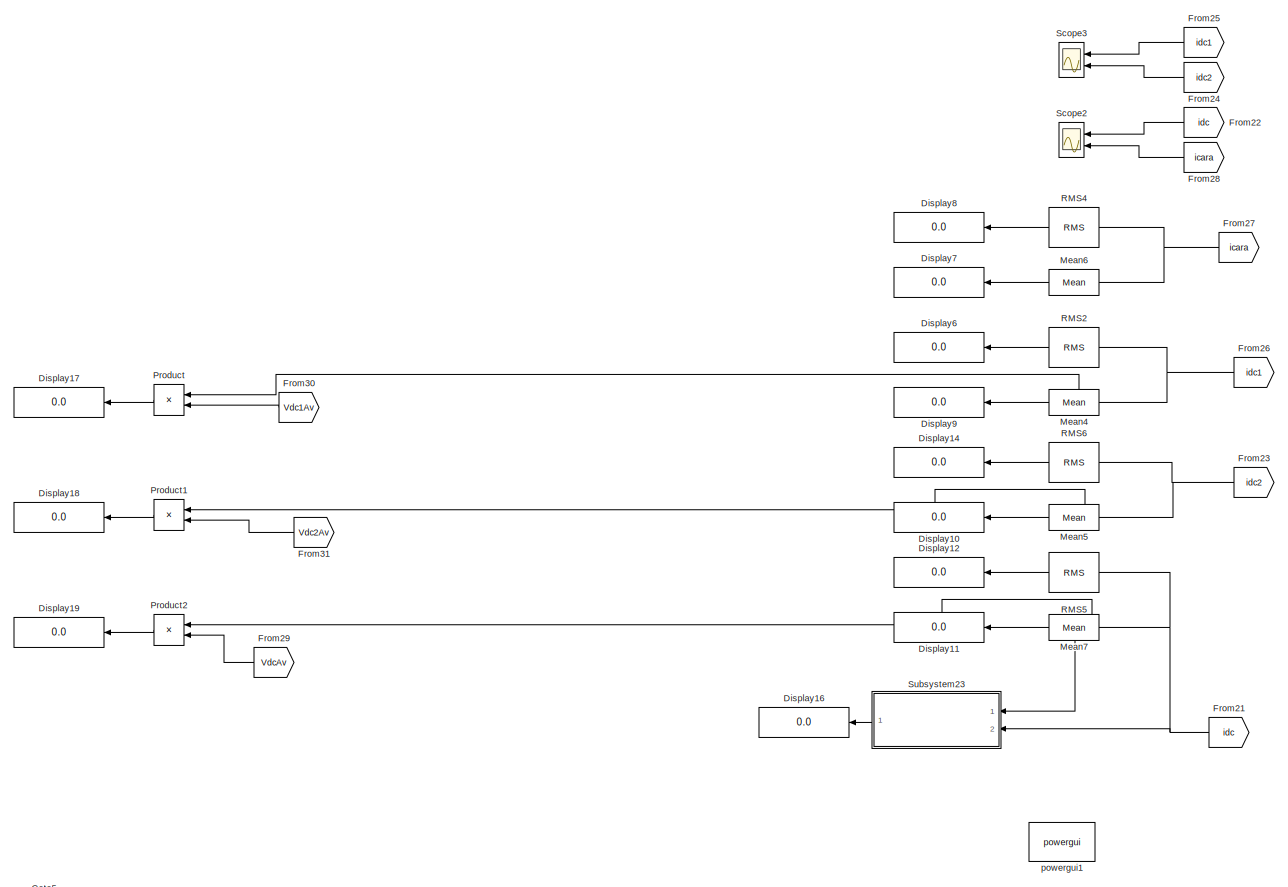
[diagram: root canvas - part 1/5, top center region]
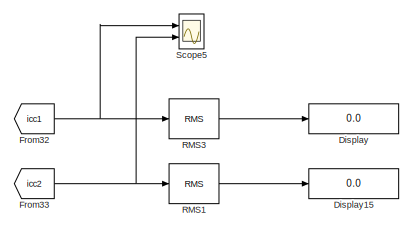
[diagram: root canvas - part 2/5, top right region]
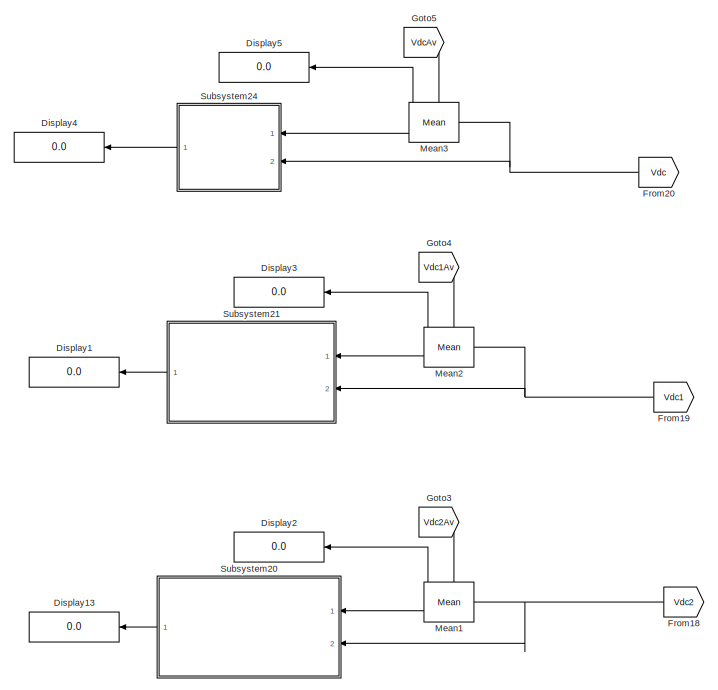
[diagram: root canvas - part 3/5, bottom left region]
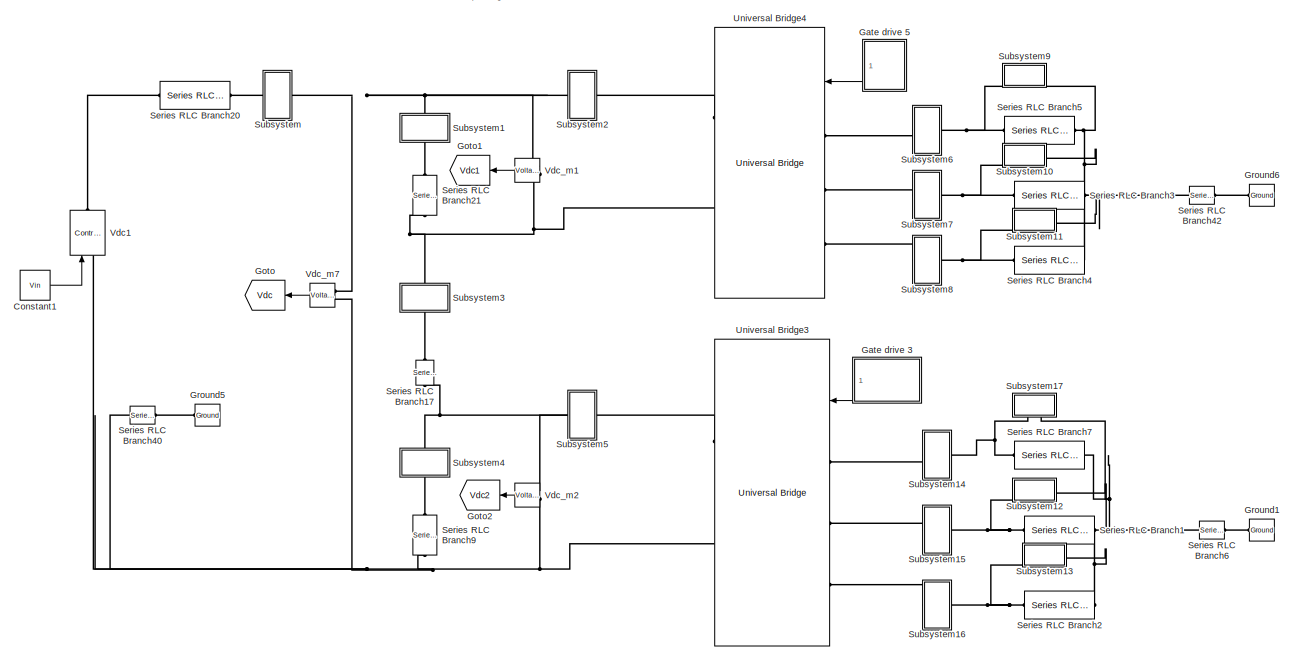
[diagram: root canvas - part 4/5, bottom center region]
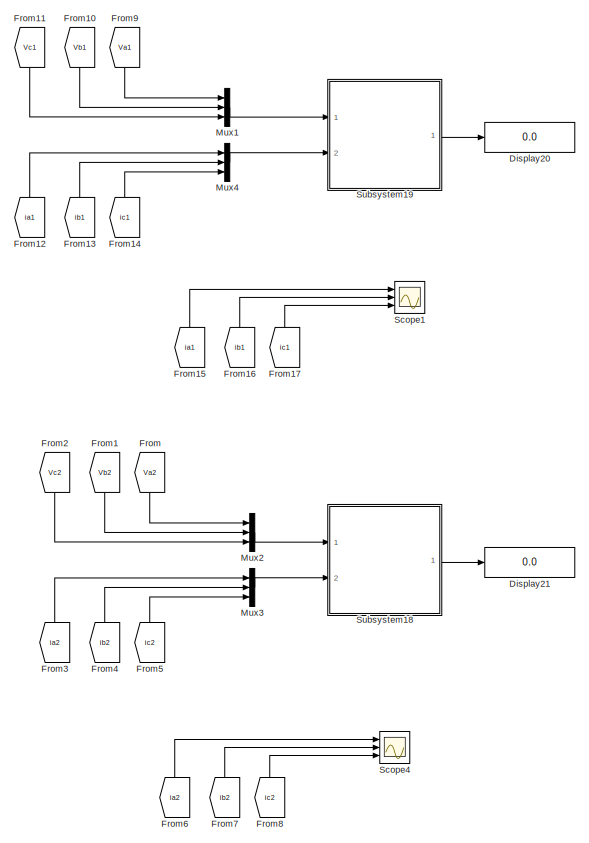
[diagram: root canvas - part 5/5, bottom right region]
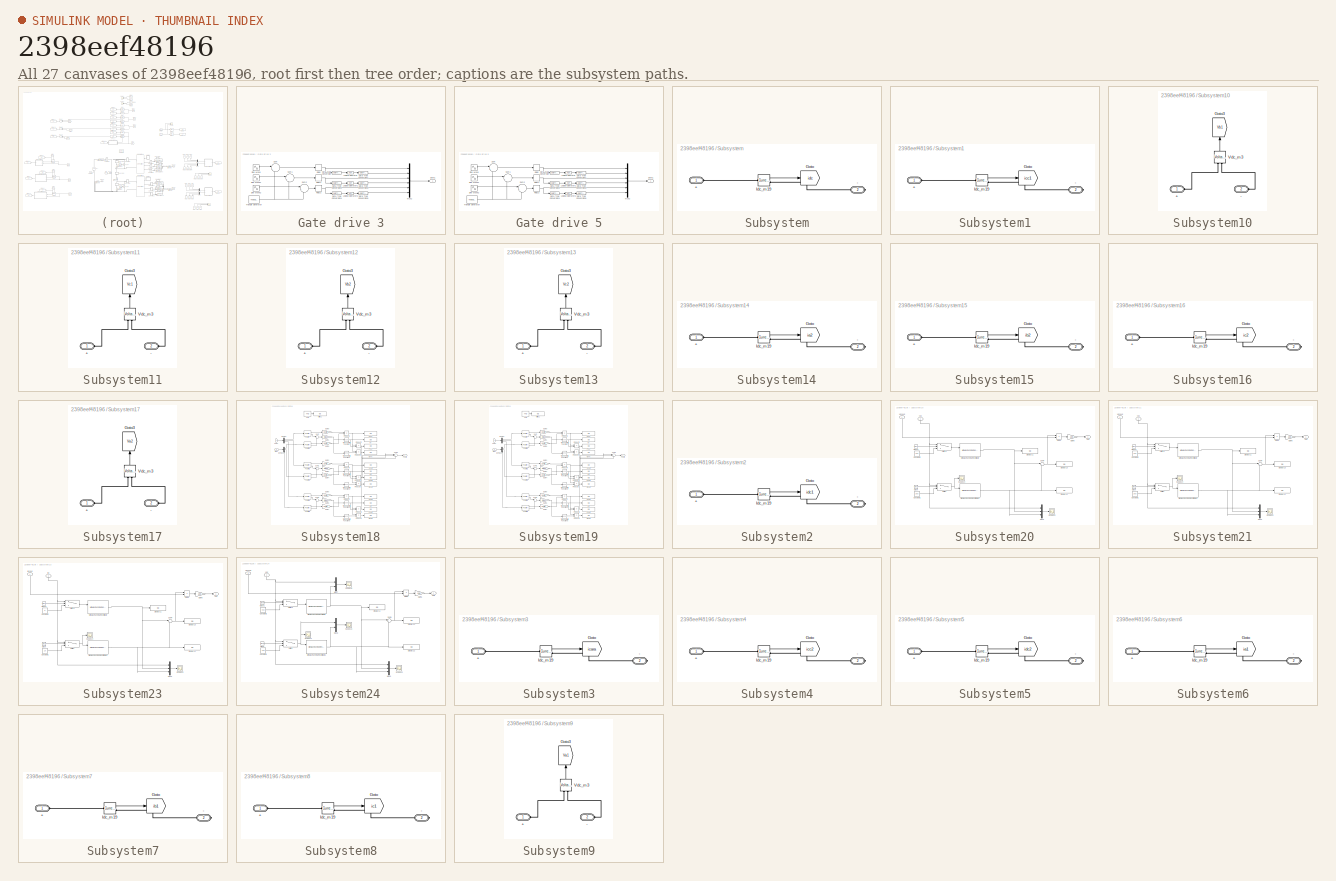
[diagram: thumbnail index - all 27 canvases of the model, root first then tree order]
MODEL slx_2398eef48196
KIND model
CONFIG AbsTol = auto
CONFIG EnableMultiTasking = on
CONFIG FixedStep = Ts
CONFIG MaxStep = auto
CONFIG MinStep = auto
CONFIG RelTol = 1e-3
CONFIG SampleTimeConstraint = Unconstrained
CONFIG Solver = ode4
CONFIG SolverName = ode4
CONFIG StartTime = 0.0
CONFIG StopTime = Tfinal
BLOCK [Constant] Constant1
  Value = Vin
BLOCK [Display] Display
  Decimation = 1
  Ports = [1]
BLOCK [Display] Display1
  Decimation = 1
  Ports = [1]
BLOCK [Display] Display10
  Decimation = 1
  Ports = [1]
BLOCK [Display] Display11
  Decimation = 1
  Ports = [1]
BLOCK [Display] Display12
  Decimation = 1
  Ports = [1]
BLOCK [Display] Display13
  Decimation = 1
  Ports = [1]
BLOCK [Display] Display14
  Decimation = 1
  Ports = [1]
BLOCK [Display] Display15
  Decimation = 1
  Ports = [1]
BLOCK [Display] Display16
  Decimation = 1
  Ports = [1]
BLOCK [Display] Display17
  Decimation = 1
  Ports = [1]
BLOCK [Display] Display18
  Decimation = 1
  Ports = [1]
BLOCK [Display] Display19
  Decimation = 1
  Ports = [1]
BLOCK [Display] Display2
  Decimation = 1
  Ports = [1]
BLOCK [Display] Display20
  Decimation = 1
  Ports = [1]
BLOCK [Display] Display21
  Decimation = 1
  Ports = [1]
BLOCK [Display] Display3
  Decimation = 1
  Ports = [1]
BLOCK [Display] Display4
  Decimation = 1
  Ports = [1]
BLOCK [Display] Display5
  Decimation = 1
  Ports = [1]
BLOCK [Display] Display6
  Decimation = 1
  Ports = [1]
BLOCK [Display] Display7
  Decimation = 1
  Ports = [1]
BLOCK [Display] Display8
  Decimation = 1
  Ports = [1]
BLOCK [Display] Display9
  Decimation = 1
  Ports = [1]
BLOCK [From] From
  GotoTag = Va2
  TagVisibility = global
BLOCK [From] From1
  GotoTag = Vb2
  TagVisibility = global
BLOCK [From] From10
  GotoTag = Vb1
  TagVisibility = global
BLOCK [From] From11
  GotoTag = Vc1
  TagVisibility = global
BLOCK [From] From12
  GotoTag = ia1
  TagVisibility = global
BLOCK [From] From13
  GotoTag = ib1
  TagVisibility = global
BLOCK [From] From14
  GotoTag = ic1
  TagVisibility = global
BLOCK [From] From15
  GotoTag = ia1
  TagVisibility = global
BLOCK [From] From16
  GotoTag = ib1
  TagVisibility = global
BLOCK [From] From17
  GotoTag = ic1
  TagVisibility = global
BLOCK [From] From18
  GotoTag = Vdc2
  TagVisibility = global
BLOCK [From] From19
  GotoTag = Vdc1
  TagVisibility = global
BLOCK [From] From2
  GotoTag = Vc2
  TagVisibility = global
BLOCK [From] From20
  GotoTag = Vdc
  TagVisibility = global
BLOCK [From] From21
  GotoTag = idc
  TagVisibility = global
BLOCK [From] From22
  GotoTag = idc
  TagVisibility = global
BLOCK [From] From23
  GotoTag = idc2
  TagVisibility = global
BLOCK [From] From24
  GotoTag = idc2
  TagVisibility = global
BLOCK [From] From25
  GotoTag = idc1
  TagVisibility = global
BLOCK [From] From26
  GotoTag = idc1
  TagVisibility = global
BLOCK [From] From27
  GotoTag = icara
  TagVisibility = global
BLOCK [From] From28
  GotoTag = icara
  TagVisibility = global
BLOCK [From] From29
  GotoTag = VdcAv
BLOCK [From] From3
  GotoTag = ia2
  TagVisibility = global
BLOCK [From] From30
  GotoTag = Vdc1Av
BLOCK [From] From31
  GotoTag = Vdc2Av
BLOCK [From] From32
  GotoTag = icc1
  TagVisibility = global
BLOCK [From] From33
  GotoTag = icc2
  TagVisibility = global
BLOCK [From] From4
  GotoTag = ib2
  TagVisibility = global
BLOCK [From] From5
  GotoTag = ic2
  TagVisibility = global
BLOCK [From] From6
  GotoTag = ia2
  TagVisibility = global
BLOCK [From] From7
  GotoTag = ib2
  TagVisibility = global
BLOCK [From] From8
  GotoTag = ic2
  TagVisibility = global
BLOCK [From] From9
  GotoTag = Va1
  TagVisibility = global
BLOCK [SubSystem] Gate drive 3
  Ports = [0, 1]
  RequestExecContextInheritance = off
BLOCK [DataTypeConversion] Gate drive 3/Data Type Conversion
  OutDataTypeStr = boolean
  RndMeth = Floor
  SaturateOnIntegerOverflow = off
BLOCK [DataTypeConversion] Gate drive 3/Data Type Conversion1
  OutDataTypeStr = double
  RndMeth = Floor
  SaturateOnIntegerOverflow = off
BLOCK [DataTypeConversion] Gate drive 3/Data Type Conversion2
  OutDataTypeStr = boolean
  RndMeth = Floor
  SaturateOnIntegerOverflow = off
BLOCK [DataTypeConversion] Gate drive 3/Data Type Conversion3
  OutDataTypeStr = double
  RndMeth = Floor
  SaturateOnIntegerOverflow = off
BLOCK [DataTypeConversion] Gate drive 3/Data Type Conversion4
  OutDataTypeStr = boolean
  RndMeth = Floor
  SaturateOnIntegerOverflow = off
BLOCK [DataTypeConversion] Gate drive 3/Data Type Conversion5
  OutDataTypeStr = double
  RndMeth = Floor
  SaturateOnIntegerOverflow = off
BLOCK [Logic] Gate drive 3/Logical Operator
  AllPortsSameDT = off
  Operator = NOT
  OutDataTypeStr = boolean
  Ports = [1, 1]
BLOCK [Logic] Gate drive 3/Logical Operator1
  AllPortsSameDT = off
  Operator = NOT
  OutDataTypeStr = boolean
  Ports = [1, 1]
BLOCK [Logic] Gate drive 3/Logical Operator2
  AllPortsSameDT = off
  Operator = NOT
  OutDataTypeStr = boolean
  Ports = [1, 1]
BLOCK [Mux] Gate drive 3/Mux2
  DisplayOption = bar
  Inputs = 6
  Ports = [6, 1]
BLOCK [Relay] Gate drive 3/Relay
  InputProcessing = Elements as channels (sample based)
BLOCK [Relay] Gate drive 3/Relay1
  InputProcessing = Elements as channels (sample based)
BLOCK [Relay] Gate drive 3/Relay2
  InputProcessing = Elements as channels (sample based)
BLOCK [Sin] Gate drive 3/Sine Wave
  Amplitude = ma2
  Frequency = wout
  Phase = delta
  Ports = [0, 1]
  SampleTime = 0
BLOCK [Sin] Gate drive 3/Sine Wave1
  Amplitude = ma2
  Frequency = wout
  Phase = -2*pi/3+delta
  Ports = [0, 1]
  SampleTime = 0
BLOCK [Sin] Gate drive 3/Sine Wave2
  Amplitude = ma2
  Frequency = wout
  Phase = 2*pi/3+delta
  Ports = [0, 1]
  SampleTime = 0
BLOCK [Sum] Gate drive 3/Sum
  IconShape = round
  InputSameDT = off
  Inputs = |+-
  OutDataTypeStr = Inherit: Inherit via internal rule
  Ports = [2, 1]
  SaturateOnIntegerOverflow = off
BLOCK [Sum] Gate drive 3/Sum1
  IconShape = round
  InputSameDT = off
  Inputs = |+-
  OutDataTypeStr = Inherit: Inherit via internal rule
  Ports = [2, 1]
  SaturateOnIntegerOverflow = off
BLOCK [Sum] Gate drive 3/Sum2
  IconShape = round
  InputSameDT = off
  Inputs = |+-
  OutDataTypeStr = Inherit: Inherit via internal rule
  Ports = [2, 1]
  SaturateOnIntegerOverflow = off
BLOCK [Reference] Gate drive 3/Triangle Generator  REF=powerlib_meascontrol/Pulse & Signal
Generators/Triangle
Generator
  Ports = [0, 1]
  SourceBlock = powerlib_meascontrol/Pulse & Signal\nGenerators/Triangle\nGenerator
  SourceProductBaseCode = PS
  SourceProductName = Simscape Power Systems
  SourceType = Triangle Generator
BLOCK [Outport] Gate drive 3/gate1
  IconDisplay = Port number
BLOCK [SubSystem] Gate drive 5
  Ports = [0, 1]
  RequestExecContextInheritance = off
BLOCK [DataTypeConversion] Gate drive 5/Data Type Conversion
  OutDataTypeStr = boolean
  RndMeth = Floor
  SaturateOnIntegerOverflow = off
BLOCK [DataTypeConversion] Gate drive 5/Data Type Conversion1
  OutDataTypeStr = double
  RndMeth = Floor
  SaturateOnIntegerOverflow = off
BLOCK [DataTypeConversion] Gate drive 5/Data Type Conversion2
  OutDataTypeStr = boolean
  RndMeth = Floor
  SaturateOnIntegerOverflow = off
BLOCK [DataTypeConversion] Gate drive 5/Data Type Conversion3
  OutDataTypeStr = double
  RndMeth = Floor
  SaturateOnIntegerOverflow = off
BLOCK [DataTypeConversion] Gate drive 5/Data Type Conversion4
  OutDataTypeStr = boolean
  RndMeth = Floor
  SaturateOnIntegerOverflow = off
BLOCK [DataTypeConversion] Gate drive 5/Data Type Conversion5
  OutDataTypeStr = double
  RndMeth = Floor
  SaturateOnIntegerOverflow = off
BLOCK [Logic] Gate drive 5/Logical Operator
  AllPortsSameDT = off
  Operator = NOT
  OutDataTypeStr = boolean
  Ports = [1, 1]
BLOCK [Logic] Gate drive 5/Logical Operator1
  AllPortsSameDT = off
  Operator = NOT
  OutDataTypeStr = boolean
  Ports = [1, 1]
BLOCK [Logic] Gate drive 5/Logical Operator2
  AllPortsSameDT = off
  Operator = NOT
  OutDataTypeStr = boolean
  Ports = [1, 1]
BLOCK [Mux] Gate drive 5/Mux2
  DisplayOption = bar
  Inputs = 6
  Ports = [6, 1]
BLOCK [Relay] Gate drive 5/Relay
  InputProcessing = Elements as channels (sample based)
BLOCK [Relay] Gate drive 5/Relay1
  InputProcessing = Elements as channels (sample based)
BLOCK [Relay] Gate drive 5/Relay2
  InputProcessing = Elements as channels (sample based)
BLOCK [Sin] Gate drive 5/Sine Wave
  Amplitude = ma1
  Frequency = wout
  Phase = delta
  Ports = [0, 1]
  SampleTime = 0
BLOCK [Sin] Gate drive 5/Sine Wave1
  Amplitude = ma1
  Frequency = wout
  Phase = -2*pi/3+delta
  Ports = [0, 1]
  SampleTime = 0
BLOCK [Sin] Gate drive 5/Sine Wave2
  Amplitude = ma1
  Frequency = wout
  Phase = 2*pi/3+delta
  Ports = [0, 1]
  SampleTime = 0
BLOCK [Sum] Gate drive 5/Sum
  IconShape = round
  InputSameDT = off
  Inputs = |+-
  OutDataTypeStr = Inherit: Inherit via internal rule
  Ports = [2, 1]
  SaturateOnIntegerOverflow = off
BLOCK [Sum] Gate drive 5/Sum1
  IconShape = round
  InputSameDT = off
  Inputs = |+-
  OutDataTypeStr = Inherit: Inherit via internal rule
  Ports = [2, 1]
  SaturateOnIntegerOverflow = off
BLOCK [Sum] Gate drive 5/Sum2
  IconShape = round
  InputSameDT = off
  Inputs = |+-
  OutDataTypeStr = Inherit: Inherit via internal rule
  Ports = [2, 1]
  SaturateOnIntegerOverflow = off
BLOCK [Reference] Gate drive 5/Triangle Generator  REF=powerlib_meascontrol/Pulse & Signal
Generators/Triangle
Generator
  Ports = [0, 1]
  SourceBlock = powerlib_meascontrol/Pulse & Signal\nGenerators/Triangle\nGenerator
  SourceProductBaseCode = PS
  SourceProductName = Simscape Power Systems
  SourceType = Triangle Generator
BLOCK [Outport] Gate drive 5/gate1
  IconDisplay = Port number
BLOCK [Goto] Goto
  GotoTag = Vdc
  TagVisibility = global
BLOCK [Goto] Goto1
  GotoTag = Vdc1
  TagVisibility = global
BLOCK [Goto] Goto2
  GotoTag = Vdc2
  TagVisibility = global
BLOCK [Goto] Goto3
  GotoTag = Vdc2Av
BLOCK [Goto] Goto4
  GotoTag = Vdc1Av
BLOCK [Goto] Goto5
  GotoTag = VdcAv
BLOCK [Reference] Ground1  REF=powerlib/Elements/Ground
  Ports = [0, 0, 0, 0, 0, 1]
  SourceBlock = powerlib/Elements/Ground
  SourceProductBaseCode = PS
  SourceProductName = Simscape Power Systems
  SourceType = Ground
BLOCK [Reference] Ground5  REF=powerlib/Elements/Ground
  Ports = [0, 0, 0, 0, 0, 1]
  SourceBlock = powerlib/Elements/Ground
  SourceProductBaseCode = PS
  SourceProductName = Simscape Power Systems
  SourceType = Ground
BLOCK [Reference] Ground6  REF=powerlib/Elements/Ground
  Ports = [0, 0, 0, 0, 0, 1]
  SourceBlock = powerlib/Elements/Ground
  SourceProductBaseCode = PS
  SourceProductName = Simscape Power Systems
  SourceType = Ground
BLOCK [Reference] Mean1  REF=powerlib_meascontrol/Measurements/Mean
  Ports = [1, 1]
  SourceBlock = powerlib_meascontrol/Measurements/Mean
  SourceProductBaseCode = PS
  SourceProductName = Simscape Power Systems
  SourceType = Mean
BLOCK [Reference] Mean2  REF=powerlib_meascontrol/Measurements/Mean
  Ports = [1, 1]
  SourceBlock = powerlib_meascontrol/Measurements/Mean
  SourceProductBaseCode = PS
  SourceProductName = Simscape Power Systems
  SourceType = Mean
BLOCK [Reference] Mean3  REF=powerlib_meascontrol/Measurements/Mean
  Ports = [1, 1]
  SourceBlock = powerlib_meascontrol/Measurements/Mean
  SourceProductBaseCode = PS
  SourceProductName = Simscape Power Systems
  SourceType = Mean
BLOCK [Reference] Mean4  REF=powerlib_meascontrol/Measurements/Mean
  Ports = [1, 1]
  SourceBlock = powerlib_meascontrol/Measurements/Mean
  SourceProductBaseCode = PS
  SourceProductName = Simscape Power Systems
  SourceType = Mean
BLOCK [Reference] Mean5  REF=powerlib_meascontrol/Measurements/Mean
  Ports = [1, 1]
  SourceBlock = powerlib_meascontrol/Measurements/Mean
  SourceProductBaseCode = PS
  SourceProductName = Simscape Power Systems
  SourceType = Mean
BLOCK [Reference] Mean6  REF=powerlib_meascontrol/Measurements/Mean
  Ports = [1, 1]
  SourceBlock = powerlib_meascontrol/Measurements/Mean
  SourceProductBaseCode = PS
  SourceProductName = Simscape Power Systems
  SourceType = Mean
BLOCK [Reference] Mean7  REF=powerlib_meascontrol/Measurements/Mean
  Ports = [1, 1]
  SourceBlock = powerlib_meascontrol/Measurements/Mean
  SourceProductBaseCode = PS
  SourceProductName = Simscape Power Systems
  SourceType = Mean
BLOCK [Mux] Mux1
  DisplayOption = bar
  Inputs = 3
  Ports = [3, 1]
BLOCK [Mux] Mux2
  DisplayOption = bar
  Inputs = 3
  Ports = [3, 1]
BLOCK [Mux] Mux3
  DisplayOption = bar
  Inputs = 3
  Ports = [3, 1]
BLOCK [Mux] Mux4
  DisplayOption = bar
  Inputs = 3
  Ports = [3, 1]
BLOCK [Product] Product
  InputSameDT = off
  OutDataTypeStr = Inherit: Inherit via internal rule
  Ports = [2, 1]
  RndMeth = Floor
  SaturateOnIntegerOverflow = off
BLOCK [Product] Product1
  InputSameDT = off
  OutDataTypeStr = Inherit: Inherit via internal rule
  Ports = [2, 1]
  RndMeth = Floor
  SaturateOnIntegerOverflow = off
BLOCK [Product] Product2
  InputSameDT = off
  OutDataTypeStr = Inherit: Inherit via internal rule
  Ports = [2, 1]
  RndMeth = Floor
  SaturateOnIntegerOverflow = off
BLOCK [Reference] RMS1  REF=powerlib_meascontrol/Measurements/RMS
  Ports = [1, 1]
  SourceBlock = powerlib_meascontrol/Measurements/RMS
  SourceProductBaseCode = PS
  SourceProductName = Simscape Power Systems
  SourceType = RMS
BLOCK [Reference] RMS2  REF=powerlib_meascontrol/Measurements/RMS
  Ports = [1, 1]
  SourceBlock = powerlib_meascontrol/Measurements/RMS
  SourceProductBaseCode = PS
  SourceProductName = Simscape Power Systems
  SourceType = RMS
BLOCK [Reference] RMS3  REF=powerlib_meascontrol/Measurements/RMS
  Ports = [1, 1]
  SourceBlock = powerlib_meascontrol/Measurements/RMS
  SourceProductBaseCode = PS
  SourceProductName = Simscape Power Systems
  SourceType = RMS
BLOCK [Reference] RMS4  REF=powerlib_meascontrol/Measurements/RMS
  Ports = [1, 1]
  SourceBlock = powerlib_meascontrol/Measurements/RMS
  SourceProductBaseCode = PS
  SourceProductName = Simscape Power Systems
  SourceType = RMS
BLOCK [Reference] RMS5  REF=powerlib_meascontrol/Measurements/RMS
  Ports = [1, 1]
  SourceBlock = powerlib_meascontrol/Measurements/RMS
  SourceProductBaseCode = PS
  SourceProductName = Simscape Power Systems
  SourceType = RMS
BLOCK [Reference] RMS6  REF=powerlib_meascontrol/Measurements/RMS
  Ports = [1, 1]
  SourceBlock = powerlib_meascontrol/Measurements/RMS
  SourceProductBaseCode = PS
  SourceProductName = Simscape Power Systems
  SourceType = RMS
BLOCK [Scope] Scope1
  Floating = off
  NumInputPorts = 3
  Ports = [3]
  ScopeSpecificationString = Simulink.scopes.TimeScopeBlockCfg('CurrentConfiguration', extmgr.ConfigurationSet(extmgr.Configuration('Core','General UI',true),extmgr.Configuration('Core','Source UI',true),extmgr.Configuration('Sources','WiredSimulink',true,'DataLoggingVariableName','ScopeData1'),extmgr.Configuration('Visuals','Time Domain',true,'SerializedDisplays',{struct('MinYLimReal','-1.71839','MaxYLimReal','1.71899','YLab...<+1402ch>
BLOCK [Scope] Scope2
  Floating = off
  NumInputPorts = 2
  Ports = [2]
  ScopeSpecificationString = Simulink.scopes.TimeScopeBlockCfg('CurrentConfiguration', extmgr.ConfigurationSet(extmgr.Configuration('Core','General UI',true),extmgr.Configuration('Core','Source UI',true),extmgr.Configuration('Sources','WiredSimulink',true,'DataLoggingVariableName','ScopeData2'),extmgr.Configuration('Visuals','Time Domain',true,'SerializedDisplays',{struct('MinYLimReal','7.82354','MaxYLimReal','7.88404','YLabe...<+1422ch>
BLOCK [Scope] Scope3
  Floating = off
  NumInputPorts = 2
  Ports = [2]
  ScopeSpecificationString = Simulink.scopes.TimeScopeBlockCfg('CurrentConfiguration', extmgr.ConfigurationSet(extmgr.Configuration('Core','General UI',true),extmgr.Configuration('Core','Source UI',true),extmgr.Configuration('Sources','WiredSimulink',true,'DataLoggingVariableName','ScopeData3'),extmgr.Configuration('Visuals','Time Domain',true,'SerializedDisplays',{struct('MinYLimReal','-1.21967','MaxYLimReal','14.53262','YLa...<+1426ch>
BLOCK [Scope] Scope4
  Floating = off
  NumInputPorts = 3
  Ports = [3]
  ScopeSpecificationString = Simulink.scopes.TimeScopeBlockCfg('CurrentConfiguration', extmgr.ConfigurationSet(extmgr.Configuration('Core','General UI',true),extmgr.Configuration('Core','Source UI',true),extmgr.Configuration('Sources','WiredSimulink',true),extmgr.Configuration('Visuals','Time Domain',true,'SerializedDisplays',{struct('MinYLimReal','-1.71839','MaxYLimReal','1.71899','YLabelReal','','MinYLimMag','0.00000','MaxY...<+1363ch>
BLOCK [Scope] Scope5
  Floating = off
  NumInputPorts = 2
  Ports = [2]
  ScopeSpecificationString = Simulink.scopes.TimeScopeBlockCfg('CurrentConfiguration', extmgr.ConfigurationSet(extmgr.Configuration('Core','General UI',true),extmgr.Configuration('Core','Source UI',true),extmgr.Configuration('Sources','WiredSimulink',true,'DataLoggingVariableName','ScopeData4'),extmgr.Configuration('Visuals','Time Domain',true,'SerializedDisplays',{struct('MinYLimReal','-12.33938','MaxYLimReal','7.39208','YLa...<+1426ch>
BLOCK [Reference] Series RLC Branch1  REF=powerlib/Elements/Series RLC Branch
  Ports = [0, 0, 0, 0, 0, 1, 1]
  SourceBlock = powerlib/Elements/Series RLC Branch
  SourceProductBaseCode = PS
  SourceProductName = Simscape Power Systems
  SourceType = Series RLC Branch
BLOCK [Reference] Series RLC Branch17  REF=powerlib/Elements/Series RLC Branch
  Ports = [0, 0, 0, 0, 0, 1, 1]
  SourceBlock = powerlib/Elements/Series RLC Branch
  SourceProductBaseCode = PS
  SourceProductName = Simscape Power Systems
  SourceType = Series RLC Branch
BLOCK [Reference] Series RLC Branch2  REF=powerlib/Elements/Series RLC Branch
  Ports = [0, 0, 0, 0, 0, 1, 1]
  SourceBlock = powerlib/Elements/Series RLC Branch
  SourceProductBaseCode = PS
  SourceProductName = Simscape Power Systems
  SourceType = Series RLC Branch
BLOCK [Reference] Series RLC Branch20  REF=powerlib/Elements/Series RLC Branch
  Ports = [0, 0, 0, 0, 0, 1, 1]
  SourceBlock = powerlib/Elements/Series RLC Branch
  SourceProductBaseCode = PS
  SourceProductName = Simscape Power Systems
  SourceType = Series RLC Branch
BLOCK [Reference] Series RLC Branch21  REF=powerlib/Elements/Series RLC Branch
  Ports = [0, 0, 0, 0, 0, 1, 1]
  SourceBlock = powerlib/Elements/Series RLC Branch
  SourceProductBaseCode = PS
  SourceProductName = Simscape Power Systems
  SourceType = Series RLC Branch
BLOCK [Reference] Series RLC Branch3  REF=powerlib/Elements/Series RLC Branch
  Ports = [0, 0, 0, 0, 0, 1, 1]
  SourceBlock = powerlib/Elements/Series RLC Branch
  SourceProductBaseCode = PS
  SourceProductName = Simscape Power Systems
  SourceType = Series RLC Branch
BLOCK [Reference] Series RLC Branch4  REF=powerlib/Elements/Series RLC Branch
  Ports = [0, 0, 0, 0, 0, 1, 1]
  SourceBlock = powerlib/Elements/Series RLC Branch
  SourceProductBaseCode = PS
  SourceProductName = Simscape Power Systems
  SourceType = Series RLC Branch
BLOCK [Reference] Series RLC Branch40  REF=powerlib/Elements/Series RLC Branch
  Ports = [0, 0, 0, 0, 0, 1, 1]
  SourceBlock = powerlib/Elements/Series RLC Branch
  SourceProductBaseCode = PS
  SourceProductName = Simscape Power Systems
  SourceType = Series RLC Branch
BLOCK [Reference] Series RLC Branch42  REF=powerlib/Elements/Series RLC Branch
  Ports = [0, 0, 0, 0, 0, 1, 1]
  SourceBlock = powerlib/Elements/Series RLC Branch
  SourceProductBaseCode = PS
  SourceProductName = Simscape Power Systems
  SourceType = Series RLC Branch
BLOCK [Reference] Series RLC Branch5  REF=powerlib/Elements/Series RLC Branch
  Ports = [0, 0, 0, 0, 0, 1, 1]
  SourceBlock = powerlib/Elements/Series RLC Branch
  SourceProductBaseCode = PS
  SourceProductName = Simscape Power Systems
  SourceType = Series RLC Branch
BLOCK [Reference] Series RLC Branch6  REF=powerlib/Elements/Series RLC Branch
  Ports = [0, 0, 0, 0, 0, 1, 1]
  SourceBlock = powerlib/Elements/Series RLC Branch
  SourceProductBaseCode = PS
  SourceProductName = Simscape Power Systems
  SourceType = Series RLC Branch
BLOCK [Reference] Series RLC Branch7  REF=powerlib/Elements/Series RLC Branch
  Ports = [0, 0, 0, 0, 0, 1, 1]
  SourceBlock = powerlib/Elements/Series RLC Branch
  SourceProductBaseCode = PS
  SourceProductName = Simscape Power Systems
  SourceType = Series RLC Branch
BLOCK [Reference] Series RLC Branch9  REF=powerlib/Elements/Series RLC Branch
  Ports = [0, 0, 0, 0, 0, 1, 1]
  SourceBlock = powerlib/Elements/Series RLC Branch
  SourceProductBaseCode = PS
  SourceProductName = Simscape Power Systems
  SourceType = Series RLC Branch
BLOCK [SubSystem] Subsystem
  Ports = [0, 0, 0, 0, 0, 1, 1]
  RequestExecContextInheritance = off
BLOCK [PMIOPort] Subsystem/ -
  Port = 2
  Side = Right
BLOCK [PMIOPort] Subsystem/+
  Side = Left
BLOCK [Goto] Subsystem/Goto
  GotoTag = idc
  TagVisibility = global
BLOCK [Reference] Subsystem/Idc_m19  REF=powerlib/Measurements/Current Measurement
  Ports = [0, 1, 0, 0, 0, 1, 1]
  SourceBlock = powerlib/Measurements/Current Measurement
  SourceProductBaseCode = PS
  SourceProductName = Simscape Power Systems
  SourceType = Current Measurement
BLOCK [SubSystem] Subsystem1
  Ports = [0, 0, 0, 0, 0, 1, 1]
  RequestExecContextInheritance = off
BLOCK [PMIOPort] Subsystem1/ -
  Port = 2
  Side = Right
BLOCK [PMIOPort] Subsystem1/+
  Side = Left
BLOCK [Goto] Subsystem1/Goto
  GotoTag = icc1
  TagVisibility = global
BLOCK [Reference] Subsystem1/Idc_m19  REF=powerlib/Measurements/Current Measurement
  Ports = [0, 1, 0, 0, 0, 1, 1]
  SourceBlock = powerlib/Measurements/Current Measurement
  SourceProductBaseCode = PS
  SourceProductName = Simscape Power Systems
  SourceType = Current Measurement
BLOCK [SubSystem] Subsystem10
  Ports = [0, 0, 0, 0, 0, 2]
  RequestExecContextInheritance = off
BLOCK [PMIOPort] Subsystem10/+
  Side = Left
BLOCK [PMIOPort] Subsystem10/-
  Port = 2
  Side = Left
BLOCK [Goto] Subsystem10/Goto3
  GotoTag = Vb1
  TagVisibility = global
BLOCK [Reference] Subsystem10/Vdc_m3  REF=powerlib/Measurements/Voltage Measurement
  Ports = [0, 1, 0, 0, 0, 2]
  SourceBlock = powerlib/Measurements/Voltage Measurement
  SourceProductBaseCode = PS
  SourceProductName = Simscape Power Systems
  SourceType = Voltage Measurement
BLOCK [SubSystem] Subsystem11
  Ports = [0, 0, 0, 0, 0, 2]
  RequestExecContextInheritance = off
BLOCK [PMIOPort] Subsystem11/+
  Side = Left
BLOCK [PMIOPort] Subsystem11/-
  Port = 2
  Side = Left
BLOCK [Goto] Subsystem11/Goto3
  GotoTag = Vc1
  TagVisibility = global
BLOCK [Reference] Subsystem11/Vdc_m3  REF=powerlib/Measurements/Voltage Measurement
  Ports = [0, 1, 0, 0, 0, 2]
  SourceBlock = powerlib/Measurements/Voltage Measurement
  SourceProductBaseCode = PS
  SourceProductName = Simscape Power Systems
  SourceType = Voltage Measurement
BLOCK [SubSystem] Subsystem12
  Ports = [0, 0, 0, 0, 0, 2]
  RequestExecContextInheritance = off
BLOCK [PMIOPort] Subsystem12/+
  Side = Left
BLOCK [PMIOPort] Subsystem12/-
  Port = 2
  Side = Left
BLOCK [Goto] Subsystem12/Goto3
  GotoTag = Vb2
  TagVisibility = global
BLOCK [Reference] Subsystem12/Vdc_m3  REF=powerlib/Measurements/Voltage Measurement
  Ports = [0, 1, 0, 0, 0, 2]
  SourceBlock = powerlib/Measurements/Voltage Measurement
  SourceProductBaseCode = PS
  SourceProductName = Simscape Power Systems
  SourceType = Voltage Measurement
BLOCK [SubSystem] Subsystem13
  Ports = [0, 0, 0, 0, 0, 2]
  RequestExecContextInheritance = off
BLOCK [PMIOPort] Subsystem13/+
  Side = Left
BLOCK [PMIOPort] Subsystem13/-
  Port = 2
  Side = Left
BLOCK [Goto] Subsystem13/Goto3
  GotoTag = Vc2
  TagVisibility = global
BLOCK [Reference] Subsystem13/Vdc_m3  REF=powerlib/Measurements/Voltage Measurement
  Ports = [0, 1, 0, 0, 0, 2]
  SourceBlock = powerlib/Measurements/Voltage Measurement
  SourceProductBaseCode = PS
  SourceProductName = Simscape Power Systems
  SourceType = Voltage Measurement
BLOCK [SubSystem] Subsystem14
  Ports = [0, 0, 0, 0, 0, 1, 1]
  RequestExecContextInheritance = off
BLOCK [PMIOPort] Subsystem14/ -
  Port = 2
  Side = Right
BLOCK [PMIOPort] Subsystem14/+
  Side = Left
BLOCK [Goto] Subsystem14/Goto
  GotoTag = ia2
  TagVisibility = global
BLOCK [Reference] Subsystem14/Idc_m19  REF=powerlib/Measurements/Current Measurement
  Ports = [0, 1, 0, 0, 0, 1, 1]
  SourceBlock = powerlib/Measurements/Current Measurement
  SourceProductBaseCode = PS
  SourceProductName = Simscape Power Systems
  SourceType = Current Measurement
BLOCK [SubSystem] Subsystem15
  Ports = [0, 0, 0, 0, 0, 1, 1]
  RequestExecContextInheritance = off
BLOCK [PMIOPort] Subsystem15/ -
  Port = 2
  Side = Right
BLOCK [PMIOPort] Subsystem15/+
  Side = Left
BLOCK [Goto] Subsystem15/Goto
  GotoTag = ib2
  TagVisibility = global
BLOCK [Reference] Subsystem15/Idc_m19  REF=powerlib/Measurements/Current Measurement
  Ports = [0, 1, 0, 0, 0, 1, 1]
  SourceBlock = powerlib/Measurements/Current Measurement
  SourceProductBaseCode = PS
  SourceProductName = Simscape Power Systems
  SourceType = Current Measurement
BLOCK [SubSystem] Subsystem16
  Ports = [0, 0, 0, 0, 0, 1, 1]
  RequestExecContextInheritance = off
BLOCK [PMIOPort] Subsystem16/ -
  Port = 2
  Side = Right
BLOCK [PMIOPort] Subsystem16/+
  Side = Left
BLOCK [Goto] Subsystem16/Goto
  GotoTag = ic2
  TagVisibility = global
BLOCK [Reference] Subsystem16/Idc_m19  REF=powerlib/Measurements/Current Measurement
  Ports = [0, 1, 0, 0, 0, 1, 1]
  SourceBlock = powerlib/Measurements/Current Measurement
  SourceProductBaseCode = PS
  SourceProductName = Simscape Power Systems
  SourceType = Current Measurement
BLOCK [SubSystem] Subsystem17
  Ports = [0, 0, 0, 0, 0, 2]
  RequestExecContextInheritance = off
BLOCK [PMIOPort] Subsystem17/+
  Side = Left
BLOCK [PMIOPort] Subsystem17/-
  Port = 2
  Side = Left
BLOCK [Goto] Subsystem17/Goto3
  GotoTag = Va2
  TagVisibility = global
BLOCK [Reference] Subsystem17/Vdc_m3  REF=powerlib/Measurements/Voltage Measurement
  Ports = [0, 1, 0, 0, 0, 2]
  SourceBlock = powerlib/Measurements/Voltage Measurement
  SourceProductBaseCode = PS
  SourceProductName = Simscape Power Systems
  SourceType = Voltage Measurement
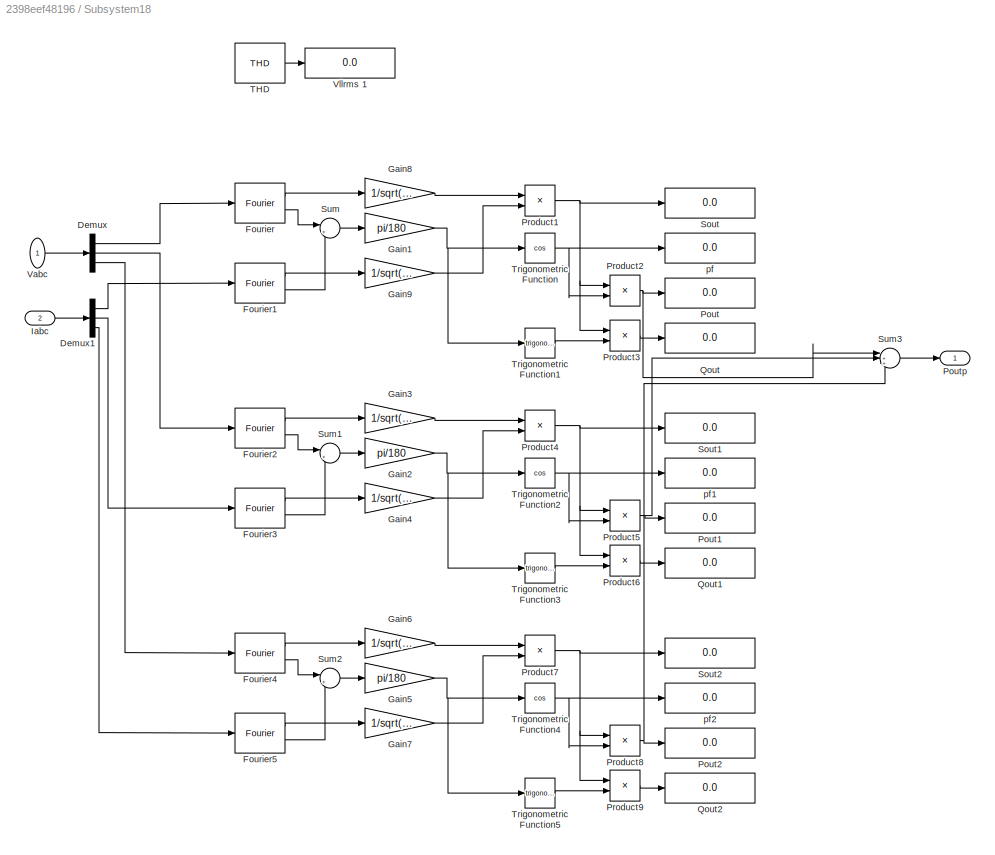
BLOCK [SubSystem] Subsystem18
  Ports = [2, 1]
  RequestExecContextInheritance = off
BLOCK [Demux] Subsystem18/Demux
  DisplayOption = bar
  Outputs = 3
  Ports = [1, 3]
BLOCK [Demux] Subsystem18/Demux1
  DisplayOption = bar
  Outputs = 3
  Ports = [1, 3]
BLOCK [Reference] Subsystem18/Fourier  REF=powerlib_meascontrol/Measurements/Fourier
  Ports = [1, 2]
  SourceBlock = powerlib_meascontrol/Measurements/Fourier
  SourceProductBaseCode = PS
  SourceProductName = Simscape Power Systems
  SourceType = Fourier
BLOCK [Reference] Subsystem18/Fourier1  REF=powerlib_meascontrol/Measurements/Fourier
  Ports = [1, 2]
  SourceBlock = powerlib_meascontrol/Measurements/Fourier
  SourceProductBaseCode = PS
  SourceProductName = Simscape Power Systems
  SourceType = Fourier
BLOCK [Reference] Subsystem18/Fourier2  REF=powerlib_meascontrol/Measurements/Fourier
  Ports = [1, 2]
  SourceBlock = powerlib_meascontrol/Measurements/Fourier
  SourceProductBaseCode = PS
  SourceProductName = Simscape Power Systems
  SourceType = Fourier
BLOCK [Reference] Subsystem18/Fourier3  REF=powerlib_meascontrol/Measurements/Fourier
  Ports = [1, 2]
  SourceBlock = powerlib_meascontrol/Measurements/Fourier
  SourceProductBaseCode = PS
  SourceProductName = Simscape Power Systems
  SourceType = Fourier
BLOCK [Reference] Subsystem18/Fourier4  REF=powerlib_meascontrol/Measurements/Fourier
  Ports = [1, 2]
  SourceBlock = powerlib_meascontrol/Measurements/Fourier
  SourceProductBaseCode = PS
  SourceProductName = Simscape Power Systems
  SourceType = Fourier
BLOCK [Reference] Subsystem18/Fourier5  REF=powerlib_meascontrol/Measurements/Fourier
  Ports = [1, 2]
  SourceBlock = powerlib_meascontrol/Measurements/Fourier
  SourceProductBaseCode = PS
  SourceProductName = Simscape Power Systems
  SourceType = Fourier
BLOCK [Gain] Subsystem18/Gain1
  Gain = pi/180
  OutDataTypeStr = Inherit: Inherit via internal rule
  ParamDataTypeStr = Inherit: Inherit via internal rule
  SaturateOnIntegerOverflow = off
BLOCK [Gain] Subsystem18/Gain2
  Gain = pi/180
  OutDataTypeStr = Inherit: Inherit via internal rule
  ParamDataTypeStr = Inherit: Inherit via internal rule
  SaturateOnIntegerOverflow = off
BLOCK [Gain] Subsystem18/Gain3
  Gain = 1/sqrt(2)
  OutDataTypeStr = Inherit: Inherit via internal rule
  ParamDataTypeStr = Inherit: Inherit via internal rule
  SaturateOnIntegerOverflow = off
BLOCK [Gain] Subsystem18/Gain4
  Gain = 1/sqrt(2)
  OutDataTypeStr = Inherit: Inherit via internal rule
  ParamDataTypeStr = Inherit: Inherit via internal rule
  SaturateOnIntegerOverflow = off
BLOCK [Gain] Subsystem18/Gain5
  Gain = pi/180
  OutDataTypeStr = Inherit: Inherit via internal rule
  ParamDataTypeStr = Inherit: Inherit via internal rule
  SaturateOnIntegerOverflow = off
BLOCK [Gain] Subsystem18/Gain6
  Gain = 1/sqrt(2)
  OutDataTypeStr = Inherit: Inherit via internal rule
  ParamDataTypeStr = Inherit: Inherit via internal rule
  SaturateOnIntegerOverflow = off
BLOCK [Gain] Subsystem18/Gain7
  Gain = 1/sqrt(2)
  OutDataTypeStr = Inherit: Inherit via internal rule
  ParamDataTypeStr = Inherit: Inherit via internal rule
  SaturateOnIntegerOverflow = off
BLOCK [Gain] Subsystem18/Gain8
  Gain = 1/sqrt(2)
  OutDataTypeStr = Inherit: Inherit via internal rule
  ParamDataTypeStr = Inherit: Inherit via internal rule
  SaturateOnIntegerOverflow = off
BLOCK [Gain] Subsystem18/Gain9
  Gain = 1/sqrt(2)
  OutDataTypeStr = Inherit: Inherit via internal rule
  ParamDataTypeStr = Inherit: Inherit via internal rule
  SaturateOnIntegerOverflow = off
BLOCK [Inport] Subsystem18/Iabc
  IconDisplay = Port number
  Port = 2
BLOCK [Display] Subsystem18/Pout
  Decimation = 1
  Ports = [1]
BLOCK [Display] Subsystem18/Pout1
  Decimation = 1
  Ports = [1]
BLOCK [Display] Subsystem18/Pout2
  Decimation = 1
  Ports = [1]
BLOCK [Outport] Subsystem18/Poutp
  IconDisplay = Port number
BLOCK [Product] Subsystem18/Product1
  InputSameDT = off
  OutDataTypeStr = Inherit: Inherit via internal rule
  Ports = [2, 1]
  RndMeth = Floor
  SaturateOnIntegerOverflow = off
BLOCK [Product] Subsystem18/Product2
  InputSameDT = off
  OutDataTypeStr = Inherit: Inherit via internal rule
  Ports = [2, 1]
  RndMeth = Floor
  SaturateOnIntegerOverflow = off
BLOCK [Product] Subsystem18/Product3
  InputSameDT = off
  OutDataTypeStr = Inherit: Inherit via internal rule
  Ports = [2, 1]
  RndMeth = Floor
  SaturateOnIntegerOverflow = off
BLOCK [Product] Subsystem18/Product4
  InputSameDT = off
  OutDataTypeStr = Inherit: Inherit via internal rule
  Ports = [2, 1]
  RndMeth = Floor
  SaturateOnIntegerOverflow = off
BLOCK [Product] Subsystem18/Product5
  InputSameDT = off
  OutDataTypeStr = Inherit: Inherit via internal rule
  Ports = [2, 1]
  RndMeth = Floor
  SaturateOnIntegerOverflow = off
BLOCK [Product] Subsystem18/Product6
  InputSameDT = off
  OutDataTypeStr = Inherit: Inherit via internal rule
  Ports = [2, 1]
  RndMeth = Floor
  SaturateOnIntegerOverflow = off
BLOCK [Product] Subsystem18/Product7
  InputSameDT = off
  OutDataTypeStr = Inherit: Inherit via internal rule
  Ports = [2, 1]
  RndMeth = Floor
  SaturateOnIntegerOverflow = off
BLOCK [Product] Subsystem18/Product8
  InputSameDT = off
  OutDataTypeStr = Inherit: Inherit via internal rule
  Ports = [2, 1]
  RndMeth = Floor
  SaturateOnIntegerOverflow = off
BLOCK [Product] Subsystem18/Product9
  InputSameDT = off
  OutDataTypeStr = Inherit: Inherit via internal rule
  Ports = [2, 1]
  RndMeth = Floor
  SaturateOnIntegerOverflow = off
BLOCK [Display] Subsystem18/Qout
  Decimation = 1
  Ports = [1]
BLOCK [Display] Subsystem18/Qout1
  Decimation = 1
  Ports = [1]
BLOCK [Display] Subsystem18/Qout2
  Decimation = 1
  Ports = [1]
BLOCK [Display] Subsystem18/Sout
  Decimation = 1
  Format = short_e
  Ports = [1]
BLOCK [Display] Subsystem18/Sout1
  Decimation = 1
  Format = short_e
  Ports = [1]
BLOCK [Display] Subsystem18/Sout2
  Decimation = 1
  Format = short_e
  Ports = [1]
BLOCK [Sum] Subsystem18/Sum
  IconShape = round
  InputSameDT = off
  Inputs = |+-
  OutDataTypeStr = Inherit: Inherit via internal rule
  Ports = [2, 1]
  SaturateOnIntegerOverflow = off
BLOCK [Sum] Subsystem18/Sum1
  IconShape = round
  InputSameDT = off
  Inputs = |+-
  OutDataTypeStr = Inherit: Inherit via internal rule
  Ports = [2, 1]
  SaturateOnIntegerOverflow = off
BLOCK [Sum] Subsystem18/Sum2
  IconShape = round
  InputSameDT = off
  Inputs = |+-
  OutDataTypeStr = Inherit: Inherit via internal rule
  Ports = [2, 1]
  SaturateOnIntegerOverflow = off
BLOCK [Sum] Subsystem18/Sum3
  IconShape = round
  InputSameDT = off
  Inputs = |+++
  OutDataTypeStr = Inherit: Inherit via internal rule
  Ports = [3, 1]
  SaturateOnIntegerOverflow = off
BLOCK [Reference] Subsystem18/THD  REF=powerlib_meascontrol/Measurements/THD
  Ports = [1, 1]
  SourceBlock = powerlib_meascontrol/Measurements/THD
  SourceProductBaseCode = PS
  SourceProductName = Simscape Power Systems
  SourceType = THD
BLOCK [Trigonometry] Subsystem18/Trigonometric Function
  Operator = cos
  Ports = [1, 1]
BLOCK [Trigonometry] Subsystem18/Trigonometric Function1
  Ports = [1, 1]
BLOCK [Trigonometry] Subsystem18/Trigonometric Function2
  Operator = cos
  Ports = [1, 1]
BLOCK [Trigonometry] Subsystem18/Trigonometric Function3
  Ports = [1, 1]
BLOCK [Trigonometry] Subsystem18/Trigonometric Function4
  Operator = cos
  Ports = [1, 1]
BLOCK [Trigonometry] Subsystem18/Trigonometric Function5
  Ports = [1, 1]
BLOCK [Inport] Subsystem18/Vabc
  IconDisplay = Port number
BLOCK [Display] Subsystem18/Vllrms 1
  Decimation = 1
  Ports = [1]
BLOCK [Display] Subsystem18/pf
  Decimation = 1
  Ports = [1]
BLOCK [Display] Subsystem18/pf1
  Decimation = 1
  Ports = [1]
BLOCK [Display] Subsystem18/pf2
  Decimation = 1
  Ports = [1]
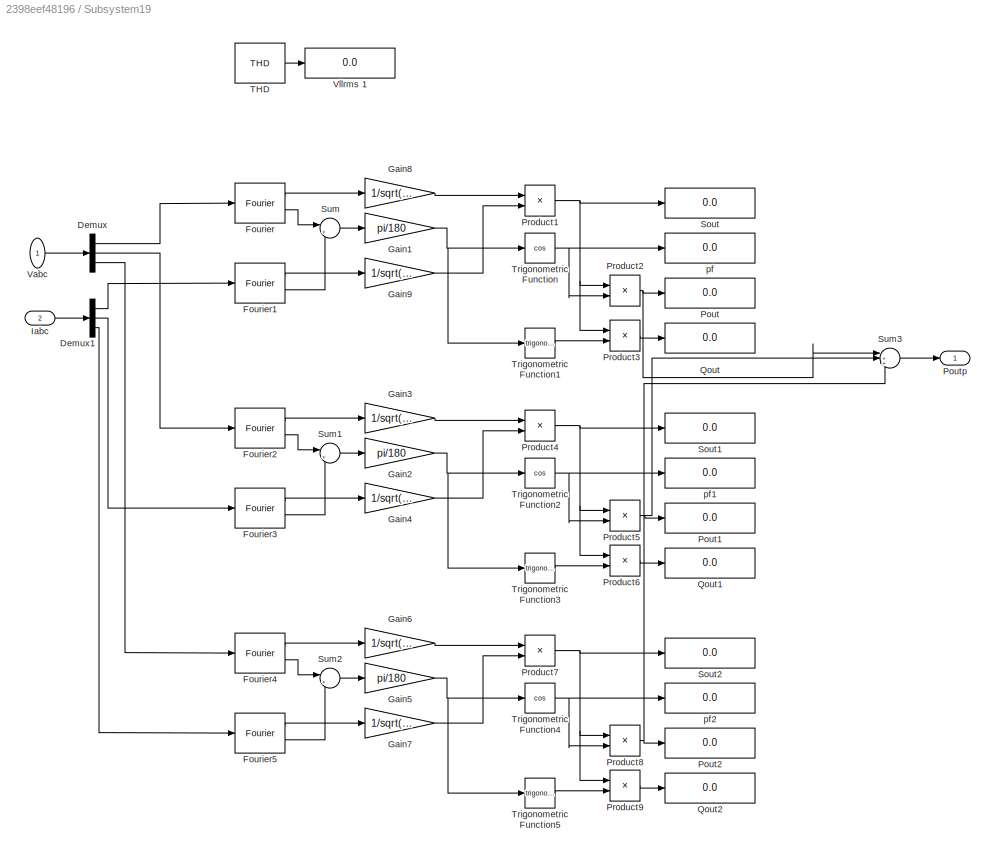
BLOCK [SubSystem] Subsystem19
  Ports = [2, 1]
  RequestExecContextInheritance = off
BLOCK [Demux] Subsystem19/Demux
  DisplayOption = bar
  Outputs = 3
  Ports = [1, 3]
BLOCK [Demux] Subsystem19/Demux1
  DisplayOption = bar
  Outputs = 3
  Ports = [1, 3]
BLOCK [Reference] Subsystem19/Fourier  REF=powerlib_meascontrol/Measurements/Fourier
  Ports = [1, 2]
  SourceBlock = powerlib_meascontrol/Measurements/Fourier
  SourceProductBaseCode = PS
  SourceProductName = Simscape Power Systems
  SourceType = Fourier
BLOCK [Reference] Subsystem19/Fourier1  REF=powerlib_meascontrol/Measurements/Fourier
  Ports = [1, 2]
  SourceBlock = powerlib_meascontrol/Measurements/Fourier
  SourceProductBaseCode = PS
  SourceProductName = Simscape Power Systems
  SourceType = Fourier
BLOCK [Reference] Subsystem19/Fourier2  REF=powerlib_meascontrol/Measurements/Fourier
  Ports = [1, 2]
  SourceBlock = powerlib_meascontrol/Measurements/Fourier
  SourceProductBaseCode = PS
  SourceProductName = Simscape Power Systems
  SourceType = Fourier
BLOCK [Reference] Subsystem19/Fourier3  REF=powerlib_meascontrol/Measurements/Fourier
  Ports = [1, 2]
  SourceBlock = powerlib_meascontrol/Measurements/Fourier
  SourceProductBaseCode = PS
  SourceProductName = Simscape Power Systems
  SourceType = Fourier
BLOCK [Reference] Subsystem19/Fourier4  REF=powerlib_meascontrol/Measurements/Fourier
  Ports = [1, 2]
  SourceBlock = powerlib_meascontrol/Measurements/Fourier
  SourceProductBaseCode = PS
  SourceProductName = Simscape Power Systems
  SourceType = Fourier
BLOCK [Reference] Subsystem19/Fourier5  REF=powerlib_meascontrol/Measurements/Fourier
  Ports = [1, 2]
  SourceBlock = powerlib_meascontrol/Measurements/Fourier
  SourceProductBaseCode = PS
  SourceProductName = Simscape Power Systems
  SourceType = Fourier
BLOCK [Gain] Subsystem19/Gain1
  Gain = pi/180
  OutDataTypeStr = Inherit: Inherit via internal rule
  ParamDataTypeStr = Inherit: Inherit via internal rule
  SaturateOnIntegerOverflow = off
BLOCK [Gain] Subsystem19/Gain2
  Gain = pi/180
  OutDataTypeStr = Inherit: Inherit via internal rule
  ParamDataTypeStr = Inherit: Inherit via internal rule
  SaturateOnIntegerOverflow = off
BLOCK [Gain] Subsystem19/Gain3
  Gain = 1/sqrt(2)
  OutDataTypeStr = Inherit: Inherit via internal rule
  ParamDataTypeStr = Inherit: Inherit via internal rule
  SaturateOnIntegerOverflow = off
BLOCK [Gain] Subsystem19/Gain4
  Gain = 1/sqrt(2)
  OutDataTypeStr = Inherit: Inherit via internal rule
  ParamDataTypeStr = Inherit: Inherit via internal rule
  SaturateOnIntegerOverflow = off
BLOCK [Gain] Subsystem19/Gain5
  Gain = pi/180
  OutDataTypeStr = Inherit: Inherit via internal rule
  ParamDataTypeStr = Inherit: Inherit via internal rule
  SaturateOnIntegerOverflow = off
BLOCK [Gain] Subsystem19/Gain6
  Gain = 1/sqrt(2)
  OutDataTypeStr = Inherit: Inherit via internal rule
  ParamDataTypeStr = Inherit: Inherit via internal rule
  SaturateOnIntegerOverflow = off
BLOCK [Gain] Subsystem19/Gain7
  Gain = 1/sqrt(2)
  OutDataTypeStr = Inherit: Inherit via internal rule
  ParamDataTypeStr = Inherit: Inherit via internal rule
  SaturateOnIntegerOverflow = off
BLOCK [Gain] Subsystem19/Gain8
  Gain = 1/sqrt(2)
  OutDataTypeStr = Inherit: Inherit via internal rule
  ParamDataTypeStr = Inherit: Inherit via internal rule
  SaturateOnIntegerOverflow = off
BLOCK [Gain] Subsystem19/Gain9
  Gain = 1/sqrt(2)
  OutDataTypeStr = Inherit: Inherit via internal rule
  ParamDataTypeStr = Inherit: Inherit via internal rule
  SaturateOnIntegerOverflow = off
BLOCK [Inport] Subsystem19/Iabc
  IconDisplay = Port number
  Port = 2
BLOCK [Display] Subsystem19/Pout
  Decimation = 1
  Ports = [1]
BLOCK [Display] Subsystem19/Pout1
  Decimation = 1
  Ports = [1]
BLOCK [Display] Subsystem19/Pout2
  Decimation = 1
  Ports = [1]
BLOCK [Outport] Subsystem19/Poutp
  IconDisplay = Port number
BLOCK [Product] Subsystem19/Product1
  InputSameDT = off
  OutDataTypeStr = Inherit: Inherit via internal rule
  Ports = [2, 1]
  RndMeth = Floor
  SaturateOnIntegerOverflow = off
BLOCK [Product] Subsystem19/Product2
  InputSameDT = off
  OutDataTypeStr = Inherit: Inherit via internal rule
  Ports = [2, 1]
  RndMeth = Floor
  SaturateOnIntegerOverflow = off
BLOCK [Product] Subsystem19/Product3
  InputSameDT = off
  OutDataTypeStr = Inherit: Inherit via internal rule
  Ports = [2, 1]
  RndMeth = Floor
  SaturateOnIntegerOverflow = off
BLOCK [Product] Subsystem19/Product4
  InputSameDT = off
  OutDataTypeStr = Inherit: Inherit via internal rule
  Ports = [2, 1]
  RndMeth = Floor
  SaturateOnIntegerOverflow = off
BLOCK [Product] Subsystem19/Product5
  InputSameDT = off
  OutDataTypeStr = Inherit: Inherit via internal rule
  Ports = [2, 1]
  RndMeth = Floor
  SaturateOnIntegerOverflow = off
BLOCK [Product] Subsystem19/Product6
  InputSameDT = off
  OutDataTypeStr = Inherit: Inherit via internal rule
  Ports = [2, 1]
  RndMeth = Floor
  SaturateOnIntegerOverflow = off
BLOCK [Product] Subsystem19/Product7
  InputSameDT = off
  OutDataTypeStr = Inherit: Inherit via internal rule
  Ports = [2, 1]
  RndMeth = Floor
  SaturateOnIntegerOverflow = off
BLOCK [Product] Subsystem19/Product8
  InputSameDT = off
  OutDataTypeStr = Inherit: Inherit via internal rule
  Ports = [2, 1]
  RndMeth = Floor
  SaturateOnIntegerOverflow = off
BLOCK [Product] Subsystem19/Product9
  InputSameDT = off
  OutDataTypeStr = Inherit: Inherit via internal rule
  Ports = [2, 1]
  RndMeth = Floor
  SaturateOnIntegerOverflow = off
BLOCK [Display] Subsystem19/Qout
  Decimation = 1
  Ports = [1]
BLOCK [Display] Subsystem19/Qout1
  Decimation = 1
  Ports = [1]
BLOCK [Display] Subsystem19/Qout2
  Decimation = 1
  Ports = [1]
BLOCK [Display] Subsystem19/Sout
  Decimation = 1
  Format = short_e
  Ports = [1]
BLOCK [Display] Subsystem19/Sout1
  Decimation = 1
  Format = short_e
  Ports = [1]
BLOCK [Display] Subsystem19/Sout2
  Decimation = 1
  Format = short_e
  Ports = [1]
BLOCK [Sum] Subsystem19/Sum
  IconShape = round
  InputSameDT = off
  Inputs = |+-
  OutDataTypeStr = Inherit: Inherit via internal rule
  Ports = [2, 1]
  SaturateOnIntegerOverflow = off
BLOCK [Sum] Subsystem19/Sum1
  IconShape = round
  InputSameDT = off
  Inputs = |+-
  OutDataTypeStr = Inherit: Inherit via internal rule
  Ports = [2, 1]
  SaturateOnIntegerOverflow = off
BLOCK [Sum] Subsystem19/Sum2
  IconShape = round
  InputSameDT = off
  Inputs = |+-
  OutDataTypeStr = Inherit: Inherit via internal rule
  Ports = [2, 1]
  SaturateOnIntegerOverflow = off
BLOCK [Sum] Subsystem19/Sum3
  IconShape = round
  InputSameDT = off
  Inputs = |+++
  OutDataTypeStr = Inherit: Inherit via internal rule
  Ports = [3, 1]
  SaturateOnIntegerOverflow = off
BLOCK [Reference] Subsystem19/THD  REF=powerlib_meascontrol/Measurements/THD
  Ports = [1, 1]
  SourceBlock = powerlib_meascontrol/Measurements/THD
  SourceProductBaseCode = PS
  SourceProductName = Simscape Power Systems
  SourceType = THD
BLOCK [Trigonometry] Subsystem19/Trigonometric Function
  Operator = cos
  Ports = [1, 1]
BLOCK [Trigonometry] Subsystem19/Trigonometric Function1
  Ports = [1, 1]
BLOCK [Trigonometry] Subsystem19/Trigonometric Function2
  Operator = cos
  Ports = [1, 1]
BLOCK [Trigonometry] Subsystem19/Trigonometric Function3
  Ports = [1, 1]
BLOCK [Trigonometry] Subsystem19/Trigonometric Function4
  Operator = cos
  Ports = [1, 1]
BLOCK [Trigonometry] Subsystem19/Trigonometric Function5
  Ports = [1, 1]
BLOCK [Inport] Subsystem19/Vabc
  IconDisplay = Port number
BLOCK [Display] Subsystem19/Vllrms 1
  Decimation = 1
  Ports = [1]
BLOCK [Display] Subsystem19/pf
  Decimation = 1
  Ports = [1]
BLOCK [Display] Subsystem19/pf1
  Decimation = 1
  Ports = [1]
BLOCK [Display] Subsystem19/pf2
  Decimation = 1
  Ports = [1]
BLOCK [SubSystem] Subsystem2
  Ports = [0, 0, 0, 0, 0, 1, 1]
  RequestExecContextInheritance = off
BLOCK [PMIOPort] Subsystem2/ -
  Port = 2
  Side = Right
BLOCK [PMIOPort] Subsystem2/+
  Side = Left
BLOCK [Goto] Subsystem2/Goto
  GotoTag = idc1
  TagVisibility = global
BLOCK [Reference] Subsystem2/Idc_m19  REF=powerlib/Measurements/Current Measurement
  Ports = [0, 1, 0, 0, 0, 1, 1]
  SourceBlock = powerlib/Measurements/Current Measurement
  SourceProductBaseCode = PS
  SourceProductName = Simscape Power Systems
  SourceType = Current Measurement
BLOCK [SubSystem] Subsystem20
  Ports = [2, 1]
  RequestExecContextInheritance = off
BLOCK [Clock] Subsystem20/Clock
BLOCK [Clock] Subsystem20/Clock1
BLOCK [Constant] Subsystem20/Constant1
  SampleTime = Ts
  Value = 350
BLOCK [Constant] Subsystem20/Constant2
  SampleTime = Ts
  Value = 150
BLOCK [Display] Subsystem20/Display11
  Decimation = 1
  Ports = [1]
BLOCK [Display] Subsystem20/Display12
  Decimation = 1
  Ports = [1]
BLOCK [Display] Subsystem20/Display13
  Decimation = 1
  Ports = [1]
BLOCK [Product] Subsystem20/Divide
  InputSameDT = off
  Inputs = */
  OutDataTypeStr = Inherit: Inherit via internal rule
  Ports = [2, 1]
  RndMeth = Floor
  SaturateOnIntegerOverflow = off
BLOCK [Gain] Subsystem20/Gain6
  Gain = 100
  OutDataTypeStr = Inherit: Inherit via internal rule
  ParamDataTypeStr = Inherit: Inherit via internal rule
  SaturateOnIntegerOverflow = off
BLOCK [Reference] Subsystem20/MinMax Running Resettable  REF=simulink/Math
Operations/MinMax
Running
Resettable
  Ports = [2, 1]
  SourceBlock = simulink/Math\nOperations/MinMax\nRunning\nResettable
  SourceProductBaseCode = SL
  SourceProductName = Simulink
  SourceType = MinMax Running Resettable
BLOCK [Reference] Subsystem20/MinMax Running Resettable1  REF=simulink/Math
Operations/MinMax
Running
Resettable
  Ports = [2, 1]
  SourceBlock = simulink/Math\nOperations/MinMax\nRunning\nResettable
  SourceProductBaseCode = SL
  SourceProductName = Simulink
  SourceType = MinMax Running Resettable
BLOCK [Mux] Subsystem20/Mux6
  DisplayOption = bar
  Inputs = 3
  Ports = [3, 1]
BLOCK [Outport] Subsystem20/Out1
  IconDisplay = Port number
BLOCK [Scope] Subsystem20/Scope12
  Floating = off
  NumInputPorts = 1
  Ports = [1]
  ScopeSpecificationString = Simulink.scopes.TimeScopeBlockCfg('CurrentConfiguration', extmgr.ConfigurationSet(extmgr.Configuration('Core','General UI',true),extmgr.Configuration('Core','Source UI',true),extmgr.Configuration('Sources','WiredSimulink',true,'DataLoggingVariableName','ScopeData11','DataLoggingSaveFormat','StructureWithTime','DataLoggingDecimation','1','DataLoggingDecimateData',true),extmgr.Configuration('Visuals...<+1753ch>
BLOCK [Scope] Subsystem20/Scope14
  Floating = off
  NumInputPorts = 1
  Ports = [1]
  ScopeSpecificationString = C++SS(StrPVP('Location','[1, 48, 1847, 1079]'),StrPVP('Open','off'),StrPVP('ZoomMode','yonly'),MxPVP('AxesTitles',53,'struct(''axes1'',''%<SignalLabel>'')'),MxPVP('ScopeGraphics',56,'struct(''FigureColor'',''[0.5 0.5 0.5]'',''AxesColor'',''[0 0 0]'',''AxesTickColor'',''[1 1 1]'',''LineColors'',''[1 1 0;1 0 1;0 1 1;1 0 0;0 1 0;0 0 1]'',''LineStyles'',''-|-|-|-|-|-'',''LineWidths'',''[0.5 0.5 0.5 0....<+341ch>  <repeated x4 — deduplicated; at blocks: Scope14>
BLOCK [Sum] Subsystem20/Sum4
  IconShape = round
  InputSameDT = off
  Inputs = |+-
  OutDataTypeStr = Inherit: Inherit via internal rule
  Ports = [2, 1]
  SaturateOnIntegerOverflow = off
BLOCK [Switch] Subsystem20/Switch
  InputSameDT = off
  SaturateOnIntegerOverflow = off
  Threshold = Ripth
BLOCK [Switch] Subsystem20/Switch1
  InputSameDT = off
  SaturateOnIntegerOverflow = off
  Threshold = Ripth
BLOCK [Inport] Subsystem20/Vdcavg
  IconDisplay = Port number
BLOCK [Inport] Subsystem20/vdc
  IconDisplay = Port number
  Port = 2
BLOCK [SubSystem] Subsystem21
  Ports = [2, 1]
  RequestExecContextInheritance = off
BLOCK [Clock] Subsystem21/Clock
BLOCK [Clock] Subsystem21/Clock1
BLOCK [Constant] Subsystem21/Constant1
  SampleTime = Ts
  Value = 350
BLOCK [Constant] Subsystem21/Constant2
  SampleTime = Ts
  Value = 150
BLOCK [Display] Subsystem21/Display11
  Decimation = 1
  Ports = [1]
BLOCK [Display] Subsystem21/Display12
  Decimation = 1
  Ports = [1]
BLOCK [Display] Subsystem21/Display13
  Decimation = 1
  Ports = [1]
BLOCK [Product] Subsystem21/Divide
  InputSameDT = off
  Inputs = */
  OutDataTypeStr = Inherit: Inherit via internal rule
  Ports = [2, 1]
  RndMeth = Floor
  SaturateOnIntegerOverflow = off
BLOCK [Gain] Subsystem21/Gain6
  Gain = 100
  OutDataTypeStr = Inherit: Inherit via internal rule
  ParamDataTypeStr = Inherit: Inherit via internal rule
  SaturateOnIntegerOverflow = off
BLOCK [Reference] Subsystem21/MinMax Running Resettable  REF=simulink/Math
Operations/MinMax
Running
Resettable
  Ports = [2, 1]
  SourceBlock = simulink/Math\nOperations/MinMax\nRunning\nResettable
  SourceProductBaseCode = SL
  SourceProductName = Simulink
  SourceType = MinMax Running Resettable
BLOCK [Reference] Subsystem21/MinMax Running Resettable1  REF=simulink/Math
Operations/MinMax
Running
Resettable
  Ports = [2, 1]
  SourceBlock = simulink/Math\nOperations/MinMax\nRunning\nResettable
  SourceProductBaseCode = SL
  SourceProductName = Simulink
  SourceType = MinMax Running Resettable
BLOCK [Mux] Subsystem21/Mux6
  DisplayOption = bar
  Inputs = 3
  Ports = [3, 1]
BLOCK [Outport] Subsystem21/Out1
  IconDisplay = Port number
BLOCK [Scope] Subsystem21/Scope12
  Floating = off
  NumInputPorts = 1
  Ports = [1]
  ScopeSpecificationString = Simulink.scopes.TimeScopeBlockCfg('CurrentConfiguration', extmgr.ConfigurationSet(extmgr.Configuration('Core','General UI',true),extmgr.Configuration('Core','Source UI',true),extmgr.Configuration('Sources','WiredSimulink',true,'DataLoggingVariableName','ScopeData11','DataLoggingSaveFormat','StructureWithTime','DataLoggingDecimation','1','DataLoggingDecimateData',true),extmgr.Configuration('Visuals...<+1749ch>
BLOCK [Scope] Subsystem21/Scope14
  Floating = off
  NumInputPorts = 1
  Ports = [1]
BLOCK [Sum] Subsystem21/Sum4
  IconShape = round
  InputSameDT = off
  Inputs = |+-
  OutDataTypeStr = Inherit: Inherit via internal rule
  Ports = [2, 1]
  SaturateOnIntegerOverflow = off
BLOCK [Switch] Subsystem21/Switch
  InputSameDT = off
  SaturateOnIntegerOverflow = off
  Threshold = Ripth
BLOCK [Switch] Subsystem21/Switch1
  InputSameDT = off
  SaturateOnIntegerOverflow = off
  Threshold = Ripth
BLOCK [Inport] Subsystem21/Vdcavg
  IconDisplay = Port number
BLOCK [Inport] Subsystem21/vdc
  IconDisplay = Port number
  Port = 2
BLOCK [SubSystem] Subsystem23
  Ports = [2, 1]
  RequestExecContextInheritance = off
BLOCK [Clock] Subsystem23/Clock
BLOCK [Clock] Subsystem23/Clock1
BLOCK [Constant] Subsystem23/Constant1
  SampleTime = Ts
  Value = 10
BLOCK [Constant] Subsystem23/Constant2
  SampleTime = Ts
  Value = 5
BLOCK [Display] Subsystem23/Display11
  Decimation = 1
  Ports = [1]
BLOCK [Display] Subsystem23/Display12
  Decimation = 1
  Ports = [1]
BLOCK [Display] Subsystem23/Display13
  Decimation = 1
  Ports = [1]
BLOCK [Product] Subsystem23/Divide
  InputSameDT = off
  Inputs = */
  OutDataTypeStr = Inherit: Inherit via internal rule
  Ports = [2, 1]
  RndMeth = Floor
  SaturateOnIntegerOverflow = off
BLOCK [Gain] Subsystem23/Gain6
  Gain = 100
  OutDataTypeStr = Inherit: Inherit via internal rule
  ParamDataTypeStr = Inherit: Inherit via internal rule
  SaturateOnIntegerOverflow = off
BLOCK [Inport] Subsystem23/Idcavg
  IconDisplay = Port number
BLOCK [Reference] Subsystem23/MinMax Running Resettable  REF=simulink/Math
Operations/MinMax
Running
Resettable
  Ports = [2, 1]
  SourceBlock = simulink/Math\nOperations/MinMax\nRunning\nResettable
  SourceProductBaseCode = SL
  SourceProductName = Simulink
  SourceType = MinMax Running Resettable
BLOCK [Reference] Subsystem23/MinMax Running Resettable1  REF=simulink/Math
Operations/MinMax
Running
Resettable
  Ports = [2, 1]
  SourceBlock = simulink/Math\nOperations/MinMax\nRunning\nResettable
  SourceProductBaseCode = SL
  SourceProductName = Simulink
  SourceType = MinMax Running Resettable
BLOCK [Mux] Subsystem23/Mux6
  DisplayOption = bar
  Inputs = 3
  Ports = [3, 1]
BLOCK [Outport] Subsystem23/Out1
  IconDisplay = Port number
BLOCK [Scope] Subsystem23/Scope12
  Floating = off
  NumInputPorts = 1
  Ports = [1]
  ScopeSpecificationString = Simulink.scopes.TimeScopeBlockCfg('CurrentConfiguration', extmgr.ConfigurationSet(extmgr.Configuration('Core','General UI',true),extmgr.Configuration('Core','Source UI',true),extmgr.Configuration('Sources','WiredSimulink',true,'DataLoggingVariableName','ScopeData11','DataLoggingSaveFormat','StructureWithTime','DataLoggingDecimation','1','DataLoggingDecimateData',true),extmgr.Configuration('Visuals...<+1744ch>
BLOCK [Scope] Subsystem23/Scope14
  Floating = off
  NumInputPorts = 1
  Ports = [1]
BLOCK [Sum] Subsystem23/Sum4
  IconShape = round
  InputSameDT = off
  Inputs = |+-
  OutDataTypeStr = Inherit: Inherit via internal rule
  Ports = [2, 1]
  SaturateOnIntegerOverflow = off
BLOCK [Switch] Subsystem23/Switch
  InputSameDT = off
  SaturateOnIntegerOverflow = off
  Threshold = Ripth
BLOCK [Switch] Subsystem23/Switch1
  InputSameDT = off
  SaturateOnIntegerOverflow = off
  Threshold = Ripth
BLOCK [Inport] Subsystem23/idc
  IconDisplay = Port number
  Port = 2
BLOCK [SubSystem] Subsystem24
  Ports = [2, 1]
  RequestExecContextInheritance = off
BLOCK [Clock] Subsystem24/Clock
BLOCK [Clock] Subsystem24/Clock1
BLOCK [Constant] Subsystem24/Constant1
  SampleTime = Ts
  Value = 700
BLOCK [Constant] Subsystem24/Constant2
  SampleTime = Ts
  Value = 400
BLOCK [Display] Subsystem24/Display11
  Decimation = 1
  Ports = [1]
BLOCK [Display] Subsystem24/Display12
  Decimation = 1
  Ports = [1]
BLOCK [Display] Subsystem24/Display13
  Decimation = 1
  Ports = [1]
BLOCK [Product] Subsystem24/Divide
  InputSameDT = off
  Inputs = */
  OutDataTypeStr = Inherit: Inherit via internal rule
  Ports = [2, 1]
  RndMeth = Floor
  SaturateOnIntegerOverflow = off
BLOCK [Gain] Subsystem24/Gain6
  Gain = 100
  OutDataTypeStr = Inherit: Inherit via internal rule
  ParamDataTypeStr = Inherit: Inherit via internal rule
  SaturateOnIntegerOverflow = off
BLOCK [Reference] Subsystem24/MinMax Running Resettable  REF=simulink/Math
Operations/MinMax
Running
Resettable
  Ports = [2, 1]
  SourceBlock = simulink/Math\nOperations/MinMax\nRunning\nResettable
  SourceProductBaseCode = SL
  SourceProductName = Simulink
  SourceType = MinMax Running Resettable
BLOCK [Reference] Subsystem24/MinMax Running Resettable1  REF=simulink/Math
Operations/MinMax
Running
Resettable
  Ports = [2, 1]
  SourceBlock = simulink/Math\nOperations/MinMax\nRunning\nResettable
  SourceProductBaseCode = SL
  SourceProductName = Simulink
  SourceType = MinMax Running Resettable
BLOCK [Mux] Subsystem24/Mux6
  DisplayOption = bar
  Inputs = 3
  Ports = [3, 1]
BLOCK [Mux] Subsystem24/Mux7
  DisplayOption = bar
  Inputs = 2
  Ports = [2, 1]
BLOCK [Mux] Subsystem24/Mux8
  DisplayOption = bar
  Inputs = 2
  Ports = [2, 1]
BLOCK [Outport] Subsystem24/Out1
  IconDisplay = Port number
BLOCK [Scope] Subsystem24/Scope12
  Floating = off
  NumInputPorts = 1
  Ports = [1]
  ScopeSpecificationString = Simulink.scopes.TimeScopeBlockCfg('CurrentConfiguration', extmgr.ConfigurationSet(extmgr.Configuration('Core','General UI',true),extmgr.Configuration('Core','Source UI',true),extmgr.Configuration('Sources','WiredSimulink',true,'DataLoggingVariableName','ScopeData11','DataLoggingSaveFormat','StructureWithTime','DataLoggingDecimation','1','DataLoggingDecimateData',true),extmgr.Configuration('Visuals...<+1772ch>
BLOCK [Scope] Subsystem24/Scope13
  Floating = off
  NumInputPorts = 1
  Ports = [1]
  ScopeSpecificationString = Simulink.scopes.TimeScopeBlockCfg('CurrentConfiguration', extmgr.ConfigurationSet(extmgr.Configuration('Core','General UI',true),extmgr.Configuration('Core','Source UI',true),extmgr.Configuration('Sources','WiredSimulink',true,'DataLoggingVariableName','ScopeData12','DataLoggingSaveFormat','StructureWithTime','DataLoggingDecimation','1','DataLoggingDecimateData',true),extmgr.Configuration('Visuals...<+1707ch>
BLOCK [Scope] Subsystem24/Scope14
  Floating = off
  NumInputPorts = 1
  Ports = [1]
BLOCK [Scope] Subsystem24/Scope16
  Floating = off
  NumInputPorts = 1
  Ports = [1]
  ScopeSpecificationString = Simulink.scopes.TimeScopeBlockCfg('CurrentConfiguration', extmgr.ConfigurationSet(extmgr.Configuration('Core','General UI',true),extmgr.Configuration('Core','Source UI',true),extmgr.Configuration('Sources','WiredSimulink',true,'DataLoggingVariableName','ScopeData15','DataLoggingSaveFormat','StructureWithTime','DataLoggingDecimation','1','DataLoggingDecimateData',true),extmgr.Configuration('Visuals...<+1700ch>
BLOCK [Sum] Subsystem24/Sum4
  IconShape = round
  InputSameDT = off
  Inputs = |+-
  OutDataTypeStr = Inherit: Inherit via internal rule
  Ports = [2, 1]
  SaturateOnIntegerOverflow = off
BLOCK [Switch] Subsystem24/Switch
  InputSameDT = off
  SaturateOnIntegerOverflow = off
  Threshold = Ripth
BLOCK [Switch] Subsystem24/Switch1
  InputSameDT = off
  SaturateOnIntegerOverflow = off
  Threshold = Ripth
BLOCK [Inport] Subsystem24/Vdcavg
  IconDisplay = Port number
BLOCK [Inport] Subsystem24/vdc
  IconDisplay = Port number
  Port = 2
BLOCK [SubSystem] Subsystem3
  Ports = [0, 0, 0, 0, 0, 1, 1]
  RequestExecContextInheritance = off
BLOCK [PMIOPort] Subsystem3/ -
  Port = 2
  Side = Right
BLOCK [PMIOPort] Subsystem3/+
  Side = Left
BLOCK [Goto] Subsystem3/Goto
  GotoTag = icara
  TagVisibility = global
BLOCK [Reference] Subsystem3/Idc_m19  REF=powerlib/Measurements/Current Measurement
  Ports = [0, 1, 0, 0, 0, 1, 1]
  SourceBlock = powerlib/Measurements/Current Measurement
  SourceProductBaseCode = PS
  SourceProductName = Simscape Power Systems
  SourceType = Current Measurement
BLOCK [SubSystem] Subsystem4
  Ports = [0, 0, 0, 0, 0, 1, 1]
  RequestExecContextInheritance = off
BLOCK [PMIOPort] Subsystem4/ -
  Port = 2
  Side = Right
BLOCK [PMIOPort] Subsystem4/+
  Side = Left
BLOCK [Goto] Subsystem4/Goto
  GotoTag = icc2
  TagVisibility = global
BLOCK [Reference] Subsystem4/Idc_m19  REF=powerlib/Measurements/Current Measurement
  Ports = [0, 1, 0, 0, 0, 1, 1]
  SourceBlock = powerlib/Measurements/Current Measurement
  SourceProductBaseCode = PS
  SourceProductName = Simscape Power Systems
  SourceType = Current Measurement
BLOCK [SubSystem] Subsystem5
  Ports = [0, 0, 0, 0, 0, 1, 1]
  RequestExecContextInheritance = off
BLOCK [PMIOPort] Subsystem5/ -
  Port = 2
  Side = Right
BLOCK [PMIOPort] Subsystem5/+
  Side = Left
BLOCK [Goto] Subsystem5/Goto
  GotoTag = idc2
  TagVisibility = global
BLOCK [Reference] Subsystem5/Idc_m19  REF=powerlib/Measurements/Current Measurement
  Ports = [0, 1, 0, 0, 0, 1, 1]
  SourceBlock = powerlib/Measurements/Current Measurement
  SourceProductBaseCode = PS
  SourceProductName = Simscape Power Systems
  SourceType = Current Measurement
BLOCK [SubSystem] Subsystem6
  Ports = [0, 0, 0, 0, 0, 1, 1]
  RequestExecContextInheritance = off
BLOCK [PMIOPort] Subsystem6/ -
  Port = 2
  Side = Right
BLOCK [PMIOPort] Subsystem6/+
  Side = Left
BLOCK [Goto] Subsystem6/Goto
  GotoTag = ia1
  TagVisibility = global
BLOCK [Reference] Subsystem6/Idc_m19  REF=powerlib/Measurements/Current Measurement
  Ports = [0, 1, 0, 0, 0, 1, 1]
  SourceBlock = powerlib/Measurements/Current Measurement
  SourceProductBaseCode = PS
  SourceProductName = Simscape Power Systems
  SourceType = Current Measurement
BLOCK [SubSystem] Subsystem7
  Ports = [0, 0, 0, 0, 0, 1, 1]
  RequestExecContextInheritance = off
BLOCK [PMIOPort] Subsystem7/ -
  Port = 2
  Side = Right
BLOCK [PMIOPort] Subsystem7/+
  Side = Left
BLOCK [Goto] Subsystem7/Goto
  GotoTag = ib1
  TagVisibility = global
BLOCK [Reference] Subsystem7/Idc_m19  REF=powerlib/Measurements/Current Measurement
  Ports = [0, 1, 0, 0, 0, 1, 1]
  SourceBlock = powerlib/Measurements/Current Measurement
  SourceProductBaseCode = PS
  SourceProductName = Simscape Power Systems
  SourceType = Current Measurement
BLOCK [SubSystem] Subsystem8
  Ports = [0, 0, 0, 0, 0, 1, 1]
  RequestExecContextInheritance = off
BLOCK [PMIOPort] Subsystem8/ -
  Port = 2
  Side = Right
BLOCK [PMIOPort] Subsystem8/+
  Side = Left
BLOCK [Goto] Subsystem8/Goto
  GotoTag = ic1
  TagVisibility = global
BLOCK [Reference] Subsystem8/Idc_m19  REF=powerlib/Measurements/Current Measurement
  Ports = [0, 1, 0, 0, 0, 1, 1]
  SourceBlock = powerlib/Measurements/Current Measurement
  SourceProductBaseCode = PS
  SourceProductName = Simscape Power Systems
  SourceType = Current Measurement
BLOCK [SubSystem] Subsystem9
  Ports = [0, 0, 0, 0, 0, 2]
  RequestExecContextInheritance = off
BLOCK [PMIOPort] Subsystem9/+
  Side = Left
BLOCK [PMIOPort] Subsystem9/-
  Port = 2
  Side = Left
BLOCK [Goto] Subsystem9/Goto3
  GotoTag = Va1
  TagVisibility = global
BLOCK [Reference] Subsystem9/Vdc_m3  REF=powerlib/Measurements/Voltage Measurement
  Ports = [0, 1, 0, 0, 0, 2]
  SourceBlock = powerlib/Measurements/Voltage Measurement
  SourceProductBaseCode = PS
  SourceProductName = Simscape Power Systems
  SourceType = Voltage Measurement
BLOCK [Reference] Universal Bridge3  REF=powerlib/Power
Electronics/Universal Bridge
  Ports = [1, 0, 0, 0, 0, 3, 2]
  SourceBlock = powerlib/Power\nElectronics/Universal Bridge
  SourceProductBaseCode = PS
  SourceProductName = Simscape Power Systems
  SourceType = Universal Bridge
BLOCK [Reference] Universal Bridge4  REF=powerlib/Power
Electronics/Universal Bridge
  Ports = [1, 0, 0, 0, 0, 3, 2]
  SourceBlock = powerlib/Power\nElectronics/Universal Bridge
  SourceProductBaseCode = PS
  SourceProductName = Simscape Power Systems
  SourceType = Universal Bridge
BLOCK [Reference] Vdc1  REF=powerlib/Electrical
Sources/Controlled Voltage Source
  Ports = [1, 0, 0, 0, 0, 1, 1]
  SourceBlock = powerlib/Electrical\nSources/Controlled Voltage Source
  SourceProductBaseCode = PS
  SourceProductName = Simscape Power Systems
  SourceType = Controlled Voltage Source
BLOCK [Reference] Vdc_m1  REF=powerlib/Measurements/Voltage Measurement
  Ports = [0, 1, 0, 0, 0, 2]
  SourceBlock = powerlib/Measurements/Voltage Measurement
  SourceProductBaseCode = PS
  SourceProductName = Simscape Power Systems
  SourceType = Voltage Measurement
BLOCK [Reference] Vdc_m2  REF=powerlib/Measurements/Voltage Measurement
  Ports = [0, 1, 0, 0, 0, 2]
  SourceBlock = powerlib/Measurements/Voltage Measurement
  SourceProductBaseCode = PS
  SourceProductName = Simscape Power Systems
  SourceType = Voltage Measurement
BLOCK [Reference] Vdc_m7  REF=powerlib/Measurements/Voltage Measurement
  Ports = [0, 1, 0, 0, 0, 2]
  SourceBlock = powerlib/Measurements/Voltage Measurement
  SourceProductBaseCode = PS
  SourceProductName = Simscape Power Systems
  SourceType = Voltage Measurement
BLOCK [Reference] powergui1  REF=powerlib/powergui
  Ports = []
  Priority = 1
  SourceBlock = powerlib/powergui
  SourceProductBaseCode = PS
  SourceProductName = Simscape Power Systems
  SourceType = PSB option menu block
LINE Constant1:1 -> Vdc1:1
LINE From10:1 -> Mux1:2
LINE From11:1 -> Mux1:3
LINE From12:1 -> Mux4:1
LINE From13:1 -> Mux4:2
LINE From14:1 -> Mux4:3
LINE From15:1 -> Scope1:1
LINE From16:1 -> Scope1:2
LINE From17:1 -> Scope1:3
NET From18:1 -> Mean1:1, Subsystem20:2
NET From19:1 -> Mean2:1, Subsystem21:2
LINE From1:1 -> Mux2:2
NET From20:1 -> Mean3:1, Subsystem24:2
NET From21:1 -> Mean7:1, RMS5:1, Subsystem23:2
LINE From22:1 -> Scope2:1
NET From23:1 -> Mean5:1, RMS6:1
LINE From24:1 -> Scope3:2
LINE From25:1 -> Scope3:1
NET From26:1 -> Mean4:1, RMS2:1
NET From27:1 -> Mean6:1, RMS4:1
LINE From28:1 -> Scope2:2
LINE From29:1 -> Product2:2
LINE From2:1 -> Mux2:3
LINE From30:1 -> Product:2
LINE From31:1 -> Product1:2
NET From32:1 -> RMS3:1, Scope5:1
NET From33:1 -> RMS1:1, Scope5:2
LINE From3:1 -> Mux3:1
LINE From4:1 -> Mux3:2
LINE From5:1 -> Mux3:3
LINE From6:1 -> Scope4:1
LINE From7:1 -> Scope4:2
LINE From8:1 -> Scope4:3
LINE From9:1 -> Mux1:1
LINE From:1 -> Mux2:1
LINE Gate drive 3/Data Type Conversion1:1 -> Gate drive 3/Mux2:2
LINE Gate drive 3/Data Type Conversion2:1 -> Gate drive 3/Logical Operator1:1
LINE Gate drive 3/Data Type Conversion3:1 -> Gate drive 3/Mux2:4
LINE Gate drive 3/Data Type Conversion4:1 -> Gate drive 3/Logical Operator2:1
LINE Gate drive 3/Data Type Conversion5:1 -> Gate drive 3/Mux2:6
LINE Gate drive 3/Data Type Conversion:1 -> Gate drive 3/Logical Operator:1
LINE Gate drive 3/Logical Operator1:1 -> Gate drive 3/Data Type Conversion3:1
LINE Gate drive 3/Logical Operator2:1 -> Gate drive 3/Data Type Conversion5:1
LINE Gate drive 3/Logical Operator:1 -> Gate drive 3/Data Type Conversion1:1
LINE Gate drive 3/Mux2:1 -> Gate drive 3/gate1:1
NET Gate drive 3/Relay1:1 -> Gate drive 3/Data Type Conversion2:1, Gate drive 3/Mux2:3
NET Gate drive 3/Relay2:1 -> Gate drive 3/Data Type Conversion4:1, Gate drive 3/Mux2:5
NET Gate drive 3/Relay:1 -> Gate drive 3/Data Type Conversion:1, Gate drive 3/Mux2:1
LINE Gate drive 3/Sine Wave1:1 -> Gate drive 3/Sum1:1
LINE Gate drive 3/Sine Wave2:1 -> Gate drive 3/Sum2:1
LINE Gate drive 3/Sine Wave:1 -> Gate drive 3/Sum:1
LINE Gate drive 3/Sum1:1 -> Gate drive 3/Relay1:1
LINE Gate drive 3/Sum2:1 -> Gate drive 3/Relay2:1
LINE Gate drive 3/Sum:1 -> Gate drive 3/Relay:1
NET Gate drive 3/Triangle Generator:1 -> Gate drive 3/Sum1:2, Gate drive 3/Sum2:2, Gate drive 3/Sum:2
LINE Gate drive 3:1 -> Universal Bridge3:1
LINE Gate drive 5/Data Type Conversion1:1 -> Gate drive 5/Mux2:2
LINE Gate drive 5/Data Type Conversion2:1 -> Gate drive 5/Logical Operator1:1
LINE Gate drive 5/Data Type Conversion3:1 -> Gate drive 5/Mux2:4
LINE Gate drive 5/Data Type Conversion4:1 -> Gate drive 5/Logical Operator2:1
LINE Gate drive 5/Data Type Conversion5:1 -> Gate drive 5/Mux2:6
LINE Gate drive 5/Data Type Conversion:1 -> Gate drive 5/Logical Operator:1
LINE Gate drive 5/Logical Operator1:1 -> Gate drive 5/Data Type Conversion3:1
LINE Gate drive 5/Logical Operator2:1 -> Gate drive 5/Data Type Conversion5:1
LINE Gate drive 5/Logical Operator:1 -> Gate drive 5/Data Type Conversion1:1
LINE Gate drive 5/Mux2:1 -> Gate drive 5/gate1:1
NET Gate drive 5/Relay1:1 -> Gate drive 5/Data Type Conversion2:1, Gate drive 5/Mux2:3
NET Gate drive 5/Relay2:1 -> Gate drive 5/Data Type Conversion4:1, Gate drive 5/Mux2:5
NET Gate drive 5/Relay:1 -> Gate drive 5/Data Type Conversion:1, Gate drive 5/Mux2:1
LINE Gate drive 5/Sine Wave1:1 -> Gate drive 5/Sum1:1
LINE Gate drive 5/Sine Wave2:1 -> Gate drive 5/Sum2:1
LINE Gate drive 5/Sine Wave:1 -> Gate drive 5/Sum:1
LINE Gate drive 5/Sum1:1 -> Gate drive 5/Relay1:1
LINE Gate drive 5/Sum2:1 -> Gate drive 5/Relay2:1
LINE Gate drive 5/Sum:1 -> Gate drive 5/Relay:1
NET Gate drive 5/Triangle Generator:1 -> Gate drive 5/Sum1:2, Gate drive 5/Sum2:2, Gate drive 5/Sum:2
LINE Gate drive 5:1 -> Universal Bridge4:1
NET Mean1:1 -> Display2:1, Goto3:1, Subsystem20:1
NET Mean2:1 -> Display3:1, Goto4:1, Subsystem21:1
NET Mean3:1 -> Display5:1, Goto5:1, Subsystem24:1
NET Mean4:1 -> Display9:1, Product:1
NET Mean5:1 -> Display10:1, Product1:1
LINE Mean6:1 -> Display7:1
NET Mean7:1 -> Display11:1, Product2:1, Subsystem23:1
LINE Mux1:1 -> Subsystem19:1
LINE Mux2:1 -> Subsystem18:1
LINE Mux3:1 -> Subsystem18:2
LINE Mux4:1 -> Subsystem19:2
LINE Product1:1 -> Display18:1
LINE Product2:1 -> Display19:1
LINE Product:1 -> Display17:1
LINE RMS1:1 -> Display15:1
LINE RMS2:1 -> Display6:1
LINE RMS3:1 -> Display:1
LINE RMS4:1 -> Display8:1
LINE RMS5:1 -> Display12:1
LINE RMS6:1 -> Display14:1
LINE Subsystem/Idc_m19:1 -> Subsystem/Goto:1
LINE Subsystem1/Idc_m19:1 -> Subsystem1/Goto:1
LINE Subsystem10/Vdc_m3:1 -> Subsystem10/Goto3:1
LINE Subsystem11/Vdc_m3:1 -> Subsystem11/Goto3:1
LINE Subsystem12/Vdc_m3:1 -> Subsystem12/Goto3:1
LINE Subsystem13/Vdc_m3:1 -> Subsystem13/Goto3:1
LINE Subsystem14/Idc_m19:1 -> Subsystem14/Goto:1
LINE Subsystem15/Idc_m19:1 -> Subsystem15/Goto:1
LINE Subsystem16/Idc_m19:1 -> Subsystem16/Goto:1
LINE Subsystem17/Vdc_m3:1 -> Subsystem17/Goto3:1
LINE Subsystem18/Demux1:1 -> Subsystem18/Fourier1:1
LINE Subsystem18/Demux1:2 -> Subsystem18/Fourier3:1
LINE Subsystem18/Demux1:3 -> Subsystem18/Fourier5:1
LINE Subsystem18/Demux:1 -> Subsystem18/Fourier:1
LINE Subsystem18/Demux:2 -> Subsystem18/Fourier2:1
LINE Subsystem18/Demux:3 -> Subsystem18/Fourier4:1
LINE Subsystem18/Fourier1:1 -> Subsystem18/Gain9:1
LINE Subsystem18/Fourier1:2 -> Subsystem18/Sum:2
LINE Subsystem18/Fourier2:1 -> Subsystem18/Gain3:1
LINE Subsystem18/Fourier2:2 -> Subsystem18/Sum1:1
LINE Subsystem18/Fourier3:1 -> Subsystem18/Gain4:1
LINE Subsystem18/Fourier3:2 -> Subsystem18/Sum1:2
LINE Subsystem18/Fourier4:1 -> Subsystem18/Gain6:1
LINE Subsystem18/Fourier4:2 -> Subsystem18/Sum2:1
LINE Subsystem18/Fourier5:1 -> Subsystem18/Gain7:1
LINE Subsystem18/Fourier5:2 -> Subsystem18/Sum2:2
LINE Subsystem18/Fourier:1 -> Subsystem18/Gain8:1
LINE Subsystem18/Fourier:2 -> Subsystem18/Sum:1
NET Subsystem18/Gain1:1 -> Subsystem18/Trigonometric Function1:1, Subsystem18/Trigonometric Function:1
NET Subsystem18/Gain2:1 -> Subsystem18/Trigonometric Function2:1, Subsystem18/Trigonometric Function3:1
LINE Subsystem18/Gain3:1 -> Subsystem18/Product4:1
LINE Subsystem18/Gain4:1 -> Subsystem18/Product4:2
NET Subsystem18/Gain5:1 -> Subsystem18/Trigonometric Function4:1, Subsystem18/Trigonometric Function5:1
LINE Subsystem18/Gain6:1 -> Subsystem18/Product7:1
LINE Subsystem18/Gain7:1 -> Subsystem18/Product7:2
LINE Subsystem18/Gain8:1 -> Subsystem18/Product1:1
LINE Subsystem18/Gain9:1 -> Subsystem18/Product1:2
LINE Subsystem18/Iabc:1 -> Subsystem18/Demux1:1
NET Subsystem18/Product1:1 -> Subsystem18/Product2:1, Subsystem18/Product3:1, Subsystem18/Sout:1
NET Subsystem18/Product2:1 -> Subsystem18/Pout:1, Subsystem18/Sum3:1
LINE Subsystem18/Product3:1 -> Subsystem18/Qout:1
NET Subsystem18/Product4:1 -> Subsystem18/Product5:1, Subsystem18/Product6:1, Subsystem18/Sout1:1
NET Subsystem18/Product5:1 -> Subsystem18/Pout1:1, Subsystem18/Sum3:2
LINE Subsystem18/Product6:1 -> Subsystem18/Qout1:1
NET Subsystem18/Product7:1 -> Subsystem18/Product8:1, Subsystem18/Product9:1, Subsystem18/Sout2:1
NET Subsystem18/Product8:1 -> Subsystem18/Pout2:1, Subsystem18/Sum3:3
LINE Subsystem18/Product9:1 -> Subsystem18/Qout2:1
LINE Subsystem18/Sum1:1 -> Subsystem18/Gain2:1
LINE Subsystem18/Sum2:1 -> Subsystem18/Gain5:1
LINE Subsystem18/Sum3:1 -> Subsystem18/Poutp:1
LINE Subsystem18/Sum:1 -> Subsystem18/Gain1:1
LINE Subsystem18/THD:1 -> Subsystem18/Vllrms 1:1
LINE Subsystem18/Trigonometric Function1:1 -> Subsystem18/Product3:2
NET Subsystem18/Trigonometric Function2:1 -> Subsystem18/Product5:2, Subsystem18/pf1:1
LINE Subsystem18/Trigonometric Function3:1 -> Subsystem18/Product6:2
NET Subsystem18/Trigonometric Function4:1 -> Subsystem18/Product8:2, Subsystem18/pf2:1
LINE Subsystem18/Trigonometric Function5:1 -> Subsystem18/Product9:2
NET Subsystem18/Trigonometric Function:1 -> Subsystem18/Product2:2, Subsystem18/pf:1
LINE Subsystem18/Vabc:1 -> Subsystem18/Demux:1
LINE Subsystem18:1 -> Display21:1
LINE Subsystem19/Demux1:1 -> Subsystem19/Fourier1:1
LINE Subsystem19/Demux1:2 -> Subsystem19/Fourier3:1
LINE Subsystem19/Demux1:3 -> Subsystem19/Fourier5:1
LINE Subsystem19/Demux:1 -> Subsystem19/Fourier:1
LINE Subsystem19/Demux:2 -> Subsystem19/Fourier2:1
LINE Subsystem19/Demux:3 -> Subsystem19/Fourier4:1
LINE Subsystem19/Fourier1:1 -> Subsystem19/Gain9:1
LINE Subsystem19/Fourier1:2 -> Subsystem19/Sum:2
LINE Subsystem19/Fourier2:1 -> Subsystem19/Gain3:1
LINE Subsystem19/Fourier2:2 -> Subsystem19/Sum1:1
LINE Subsystem19/Fourier3:1 -> Subsystem19/Gain4:1
LINE Subsystem19/Fourier3:2 -> Subsystem19/Sum1:2
LINE Subsystem19/Fourier4:1 -> Subsystem19/Gain6:1
LINE Subsystem19/Fourier4:2 -> Subsystem19/Sum2:1
LINE Subsystem19/Fourier5:1 -> Subsystem19/Gain7:1
LINE Subsystem19/Fourier5:2 -> Subsystem19/Sum2:2
LINE Subsystem19/Fourier:1 -> Subsystem19/Gain8:1
LINE Subsystem19/Fourier:2 -> Subsystem19/Sum:1
NET Subsystem19/Gain1:1 -> Subsystem19/Trigonometric Function1:1, Subsystem19/Trigonometric Function:1
NET Subsystem19/Gain2:1 -> Subsystem19/Trigonometric Function2:1, Subsystem19/Trigonometric Function3:1
LINE Subsystem19/Gain3:1 -> Subsystem19/Product4:1
LINE Subsystem19/Gain4:1 -> Subsystem19/Product4:2
NET Subsystem19/Gain5:1 -> Subsystem19/Trigonometric Function4:1, Subsystem19/Trigonometric Function5:1
LINE Subsystem19/Gain6:1 -> Subsystem19/Product7:1
LINE Subsystem19/Gain7:1 -> Subsystem19/Product7:2
LINE Subsystem19/Gain8:1 -> Subsystem19/Product1:1
LINE Subsystem19/Gain9:1 -> Subsystem19/Product1:2
LINE Subsystem19/Iabc:1 -> Subsystem19/Demux1:1
NET Subsystem19/Product1:1 -> Subsystem19/Product2:1, Subsystem19/Product3:1, Subsystem19/Sout:1
NET Subsystem19/Product2:1 -> Subsystem19/Pout:1, Subsystem19/Sum3:1
LINE Subsystem19/Product3:1 -> Subsystem19/Qout:1
NET Subsystem19/Product4:1 -> Subsystem19/Product5:1, Subsystem19/Product6:1, Subsystem19/Sout1:1
NET Subsystem19/Product5:1 -> Subsystem19/Pout1:1, Subsystem19/Sum3:2
LINE Subsystem19/Product6:1 -> Subsystem19/Qout1:1
NET Subsystem19/Product7:1 -> Subsystem19/Product8:1, Subsystem19/Product9:1, Subsystem19/Sout2:1
NET Subsystem19/Product8:1 -> Subsystem19/Pout2:1, Subsystem19/Sum3:3
LINE Subsystem19/Product9:1 -> Subsystem19/Qout2:1
LINE Subsystem19/Sum1:1 -> Subsystem19/Gain2:1
LINE Subsystem19/Sum2:1 -> Subsystem19/Gain5:1
LINE Subsystem19/Sum3:1 -> Subsystem19/Poutp:1
LINE Subsystem19/Sum:1 -> Subsystem19/Gain1:1
LINE Subsystem19/THD:1 -> Subsystem19/Vllrms 1:1
LINE Subsystem19/Trigonometric Function1:1 -> Subsystem19/Product3:2
NET Subsystem19/Trigonometric Function2:1 -> Subsystem19/Product5:2, Subsystem19/pf1:1
LINE Subsystem19/Trigonometric Function3:1 -> Subsystem19/Product6:2
NET Subsystem19/Trigonometric Function4:1 -> Subsystem19/Product8:2, Subsystem19/pf2:1
LINE Subsystem19/Trigonometric Function5:1 -> Subsystem19/Product9:2
NET Subsystem19/Trigonometric Function:1 -> Subsystem19/Product2:2, Subsystem19/pf:1
LINE Subsystem19/Vabc:1 -> Subsystem19/Demux:1
LINE Subsystem19:1 -> Display20:1
LINE Subsystem2/Idc_m19:1 -> Subsystem2/Goto:1
LINE Subsystem20/Clock1:1 -> Subsystem20/Switch1:2
LINE Subsystem20/Clock:1 -> Subsystem20/Switch:2
LINE Subsystem20/Constant1:1 -> Subsystem20/Switch:3
LINE Subsystem20/Constant2:1 -> Subsystem20/Switch1:3
LINE Subsystem20/Divide:1 -> Subsystem20/Gain6:1
LINE Subsystem20/Gain6:1 -> Subsystem20/Out1:1
NET Subsystem20/MinMax Running Resettable1:1 -> Subsystem20/Display12:1, Subsystem20/Mux6:3, Subsystem20/Sum4:2
NET Subsystem20/MinMax Running Resettable:1 -> Subsystem20/Display11:1, Subsystem20/Mux6:2, Subsystem20/Sum4:1
LINE Subsystem20/Mux6:1 -> Subsystem20/Scope12:1
NET Subsystem20/Sum4:1 -> Subsystem20/Display13:1, Subsystem20/Divide:1
LINE Subsystem20/Switch1:1 -> Subsystem20/MinMax Running Resettable:1
NET Subsystem20/Switch:1 -> Subsystem20/MinMax Running Resettable1:1, Subsystem20/Scope14:1
LINE Subsystem20/Vdcavg:1 -> Subsystem20/Divide:2
NET Subsystem20/vdc:1 -> Subsystem20/Mux6:1, Subsystem20/Switch1:1, Subsystem20/Switch:1
LINE Subsystem20:1 -> Display13:1
LINE Subsystem21/Clock1:1 -> Subsystem21/Switch1:2
LINE Subsystem21/Clock:1 -> Subsystem21/Switch:2
LINE Subsystem21/Constant1:1 -> Subsystem21/Switch:3
LINE Subsystem21/Constant2:1 -> Subsystem21/Switch1:3
LINE Subsystem21/Divide:1 -> Subsystem21/Gain6:1
LINE Subsystem21/Gain6:1 -> Subsystem21/Out1:1
NET Subsystem21/MinMax Running Resettable1:1 -> Subsystem21/Display12:1, Subsystem21/Mux6:3, Subsystem21/Sum4:2
NET Subsystem21/MinMax Running Resettable:1 -> Subsystem21/Display11:1, Subsystem21/Mux6:2, Subsystem21/Sum4:1
LINE Subsystem21/Mux6:1 -> Subsystem21/Scope12:1
NET Subsystem21/Sum4:1 -> Subsystem21/Display13:1, Subsystem21/Divide:1
LINE Subsystem21/Switch1:1 -> Subsystem21/MinMax Running Resettable:1
NET Subsystem21/Switch:1 -> Subsystem21/MinMax Running Resettable1:1, Subsystem21/Scope14:1
LINE Subsystem21/Vdcavg:1 -> Subsystem21/Divide:2
NET Subsystem21/vdc:1 -> Subsystem21/Mux6:1, Subsystem21/Switch1:1, Subsystem21/Switch:1
LINE Subsystem21:1 -> Display1:1
LINE Subsystem23/Clock1:1 -> Subsystem23/Switch1:2
LINE Subsystem23/Clock:1 -> Subsystem23/Switch:2
LINE Subsystem23/Constant1:1 -> Subsystem23/Switch:3
LINE Subsystem23/Constant2:1 -> Subsystem23/Switch1:3
LINE Subsystem23/Divide:1 -> Subsystem23/Gain6:1
LINE Subsystem23/Gain6:1 -> Subsystem23/Out1:1
LINE Subsystem23/Idcavg:1 -> Subsystem23/Divide:2
NET Subsystem23/MinMax Running Resettable1:1 -> Subsystem23/Display12:1, Subsystem23/Mux6:3, Subsystem23/Sum4:2
NET Subsystem23/MinMax Running Resettable:1 -> Subsystem23/Display11:1, Subsystem23/Mux6:2, Subsystem23/Sum4:1
LINE Subsystem23/Mux6:1 -> Subsystem23/Scope12:1
NET Subsystem23/Sum4:1 -> Subsystem23/Display13:1, Subsystem23/Divide:1
LINE Subsystem23/Switch1:1 -> Subsystem23/MinMax Running Resettable:1
NET Subsystem23/Switch:1 -> Subsystem23/MinMax Running Resettable1:1, Subsystem23/Scope14:1
NET Subsystem23/idc:1 -> Subsystem23/Mux6:1, Subsystem23/Switch1:1, Subsystem23/Switch:1
LINE Subsystem23:1 -> Display16:1
LINE Subsystem24/Clock1:1 -> Subsystem24/Switch1:2
LINE Subsystem24/Clock:1 -> Subsystem24/Switch:2
LINE Subsystem24/Constant1:1 -> Subsystem24/Switch:3
LINE Subsystem24/Constant2:1 -> Subsystem24/Switch1:3
LINE Subsystem24/Divide:1 -> Subsystem24/Gain6:1
LINE Subsystem24/Gain6:1 -> Subsystem24/Out1:1
NET Subsystem24/MinMax Running Resettable1:1 -> Subsystem24/Display12:1, Subsystem24/Mux6:3, Subsystem24/Mux8:2, Subsystem24/Sum4:2
NET Subsystem24/MinMax Running Resettable:1 -> Subsystem24/Display11:1, Subsystem24/Mux6:2, Subsystem24/Mux7:2, Subsystem24/Sum4:1
LINE Subsystem24/Mux6:1 -> Subsystem24/Scope12:1
LINE Subsystem24/Mux7:1 -> Subsystem24/Scope16:1
LINE Subsystem24/Mux8:1 -> Subsystem24/Scope13:1
NET Subsystem24/Sum4:1 -> Subsystem24/Display13:1, Subsystem24/Divide:1
LINE Subsystem24/Switch1:1 -> Subsystem24/MinMax Running Resettable:1
NET Subsystem24/Switch:1 -> Subsystem24/MinMax Running Resettable1:1, Subsystem24/Mux8:1, Subsystem24/Scope14:1
LINE Subsystem24/Vdcavg:1 -> Subsystem24/Divide:2
NET Subsystem24/vdc:1 -> Subsystem24/Mux6:1, Subsystem24/Mux7:1, Subsystem24/Switch1:1, Subsystem24/Switch:1
LINE Subsystem24:1 -> Display4:1
LINE Subsystem3/Idc_m19:1 -> Subsystem3/Goto:1
LINE Subsystem4/Idc_m19:1 -> Subsystem4/Goto:1
LINE Subsystem5/Idc_m19:1 -> Subsystem5/Goto:1
LINE Subsystem6/Idc_m19:1 -> Subsystem6/Goto:1
LINE Subsystem7/Idc_m19:1 -> Subsystem7/Goto:1
LINE Subsystem8/Idc_m19:1 -> Subsystem8/Goto:1
LINE Subsystem9/Vdc_m3:1 -> Subsystem9/Goto3:1
LINE Vdc_m1:1 -> Goto1:1
LINE Vdc_m2:1 -> Goto2:1
LINE Vdc_m7:1 -> Goto:1
PLINE Ground1:LConn1 -- Series RLC Branch6:RConn1
PLINE Ground5:LConn1 -- Series RLC Branch40:RConn1
PLINE Ground6:LConn1 -- Series RLC Branch42:RConn1
PLINE Series RLC Branch17:LConn1 -- Subsystem3:RConn1
PNET net1: Series RLC Branch17:RConn1 -- Subsystem4:RConn1 -- Subsystem5:LConn1 -- Vdc_m2:LConn1
PNET net2: Series RLC Branch1:LConn1 -- Subsystem12:LConn1 -- Subsystem15:RConn1
PNET net3: Series RLC Branch1:RConn1 -- Series RLC Branch2:RConn1 -- Series RLC Branch6:LConn1 -- Series RLC Branch7:RConn1 -- Subsystem12:LConn2 -- Subsystem13:LConn2 -- Subsystem17:LConn2
PLINE Series RLC Branch20:LConn1 -- Vdc1:RConn1
PLINE Series RLC Branch20:RConn1 -- Subsystem:LConn1
PLINE Series RLC Branch21:LConn1 -- Subsystem1:LConn1
PNET net4: Series RLC Branch21:RConn1 -- Subsystem3:LConn1 -- Universal Bridge4:RConn2 -- Vdc_m1:LConn2
PNET net5: Series RLC Branch2:LConn1 -- Subsystem13:LConn1 -- Subsystem16:RConn1
PNET net6: Series RLC Branch3:LConn1 -- Subsystem10:LConn1 -- Subsystem7:RConn1
PNET net7: Series RLC Branch3:RConn1 -- Series RLC Branch42:LConn1 -- Series RLC Branch4:RConn1 -- Series RLC Branch5:RConn1 -- Subsystem10:LConn2 -- Subsystem11:LConn2 -- Subsystem9:LConn2
PNET net8: Series RLC Branch40:LConn1 -- Series RLC Branch9:RConn1 -- Universal Bridge3:RConn2 -- Vdc1:LConn1 -- Vdc_m2:LConn2 -- Vdc_m7:LConn2
PNET net9: Series RLC Branch4:LConn1 -- Subsystem11:LConn1 -- Subsystem8:RConn1
PNET net10: Series RLC Branch5:LConn1 -- Subsystem6:RConn1 -- Subsystem9:LConn1
PNET net11: Series RLC Branch7:LConn1 -- Subsystem14:RConn1 -- Subsystem17:LConn1
PLINE Series RLC Branch9:LConn1 -- Subsystem4:LConn1
PLINE Subsystem/ -:RConn1 -- Subsystem/Idc_m19:RConn1
PLINE Subsystem/+:RConn1 -- Subsystem/Idc_m19:LConn1
PLINE Subsystem1/ -:RConn1 -- Subsystem1/Idc_m19:RConn1
PLINE Subsystem1/+:RConn1 -- Subsystem1/Idc_m19:LConn1
PLINE Subsystem10/+:RConn1 -- Subsystem10/Vdc_m3:LConn1
PLINE Subsystem10/-:RConn1 -- Subsystem10/Vdc_m3:LConn2
PLINE Subsystem11/+:RConn1 -- Subsystem11/Vdc_m3:LConn1
PLINE Subsystem11/-:RConn1 -- Subsystem11/Vdc_m3:LConn2
PLINE Subsystem12/+:RConn1 -- Subsystem12/Vdc_m3:LConn1
PLINE Subsystem12/-:RConn1 -- Subsystem12/Vdc_m3:LConn2
PLINE Subsystem13/+:RConn1 -- Subsystem13/Vdc_m3:LConn1
PLINE Subsystem13/-:RConn1 -- Subsystem13/Vdc_m3:LConn2
PLINE Subsystem14/ -:RConn1 -- Subsystem14/Idc_m19:RConn1
PLINE Subsystem14/+:RConn1 -- Subsystem14/Idc_m19:LConn1
PLINE Subsystem14:LConn1 -- Universal Bridge3:LConn1
PLINE Subsystem15/ -:RConn1 -- Subsystem15/Idc_m19:RConn1
PLINE Subsystem15/+:RConn1 -- Subsystem15/Idc_m19:LConn1
PLINE Subsystem15:LConn1 -- Universal Bridge3:LConn2
PLINE Subsystem16/ -:RConn1 -- Subsystem16/Idc_m19:RConn1
PLINE Subsystem16/+:RConn1 -- Subsystem16/Idc_m19:LConn1
PLINE Subsystem16:LConn1 -- Universal Bridge3:LConn3
PLINE Subsystem17/+:RConn1 -- Subsystem17/Vdc_m3:LConn1
PLINE Subsystem17/-:RConn1 -- Subsystem17/Vdc_m3:LConn2
PNET net12: Subsystem1:RConn1 -- Subsystem2:LConn1 -- Subsystem:RConn1 -- Vdc_m1:LConn1 -- Vdc_m7:LConn1
PLINE Subsystem2/ -:RConn1 -- Subsystem2/Idc_m19:RConn1
PLINE Subsystem2/+:RConn1 -- Subsystem2/Idc_m19:LConn1
PLINE Subsystem2:RConn1 -- Universal Bridge4:RConn1
PLINE Subsystem3/ -:RConn1 -- Subsystem3/Idc_m19:RConn1
PLINE Subsystem3/+:RConn1 -- Subsystem3/Idc_m19:LConn1
PLINE Subsystem4/ -:RConn1 -- Subsystem4/Idc_m19:RConn1
PLINE Subsystem4/+:RConn1 -- Subsystem4/Idc_m19:LConn1
PLINE Subsystem5/ -:RConn1 -- Subsystem5/Idc_m19:RConn1
PLINE Subsystem5/+:RConn1 -- Subsystem5/Idc_m19:LConn1
PLINE Subsystem5:RConn1 -- Universal Bridge3:RConn1
PLINE Subsystem6/ -:RConn1 -- Subsystem6/Idc_m19:RConn1
PLINE Subsystem6/+:RConn1 -- Subsystem6/Idc_m19:LConn1
PLINE Subsystem6:LConn1 -- Universal Bridge4:LConn1
PLINE Subsystem7/ -:RConn1 -- Subsystem7/Idc_m19:RConn1
PLINE Subsystem7/+:RConn1 -- Subsystem7/Idc_m19:LConn1
PLINE Subsystem7:LConn1 -- Universal Bridge4:LConn2
PLINE Subsystem8/ -:RConn1 -- Subsystem8/Idc_m19:RConn1
PLINE Subsystem8/+:RConn1 -- Subsystem8/Idc_m19:LConn1
PLINE Subsystem8:LConn1 -- Universal Bridge4:LConn3
PLINE Subsystem9/+:RConn1 -- Subsystem9/Vdc_m3:LConn1
PLINE Subsystem9/-:RConn1 -- Subsystem9/Vdc_m3:LConn2
note: NET lines group one-source signal fan-out (src -> all destinations, sorted); 1:1 wires keep LINE; PNET lines group multi-terminal physical nets as a canonical sorted terminal list (undirected conserving connections); 2-terminal nets keep the pairwise PLINE form
